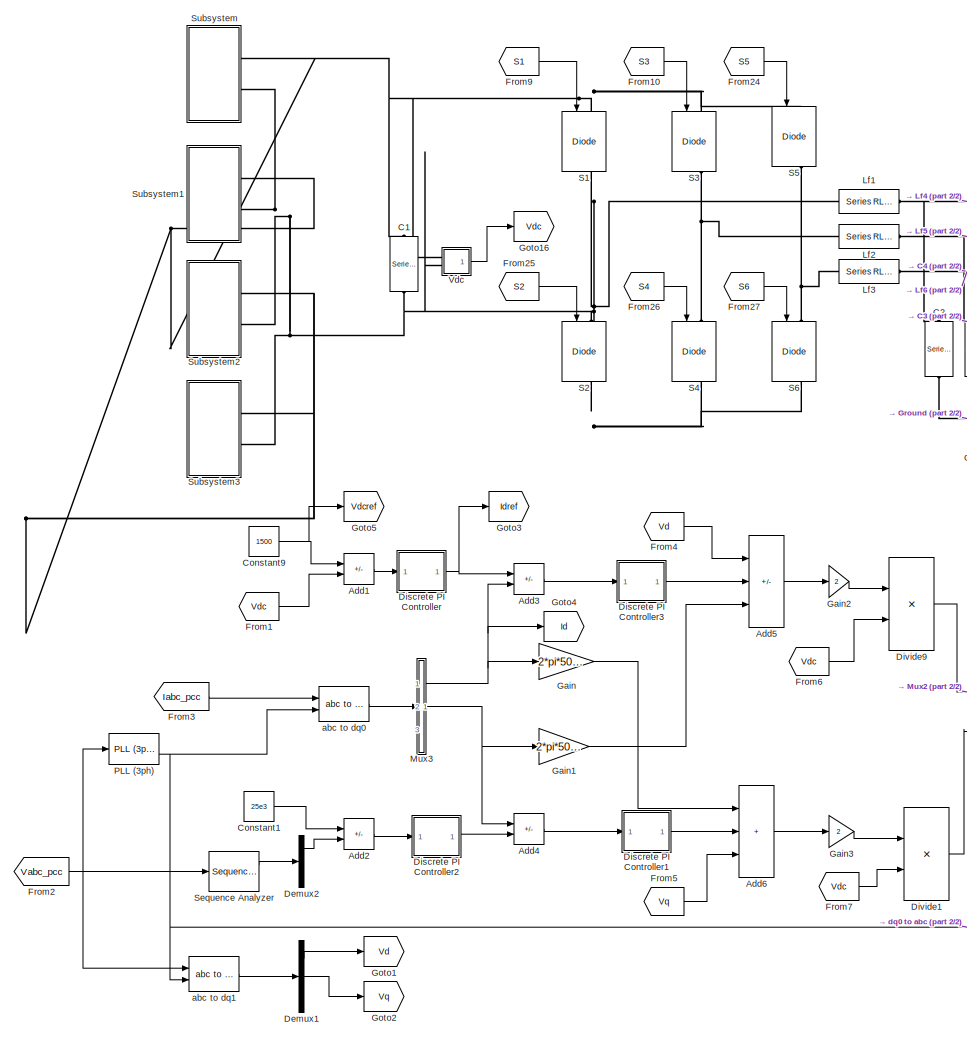
[diagram: root canvas - part 1/2, left side, full height]
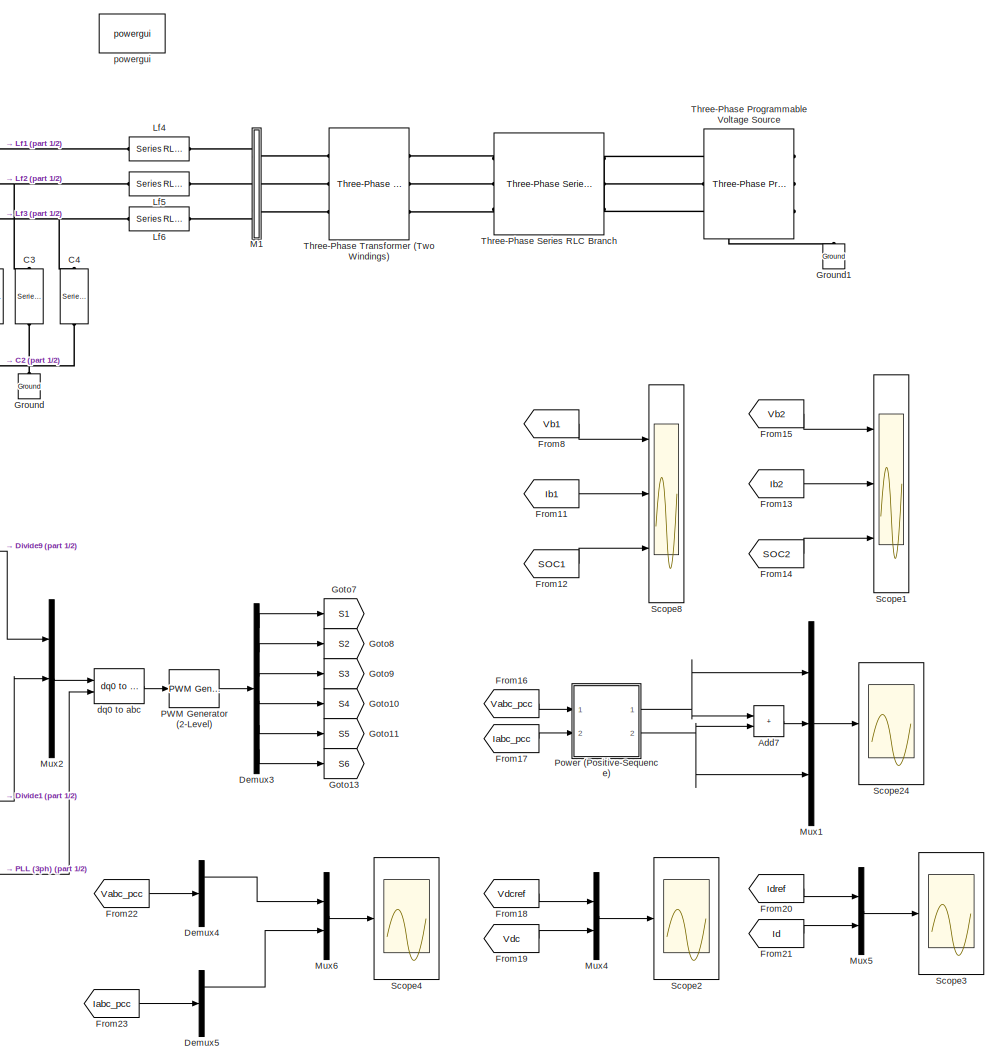
[diagram: root canvas - part 2/2, right side, full height]
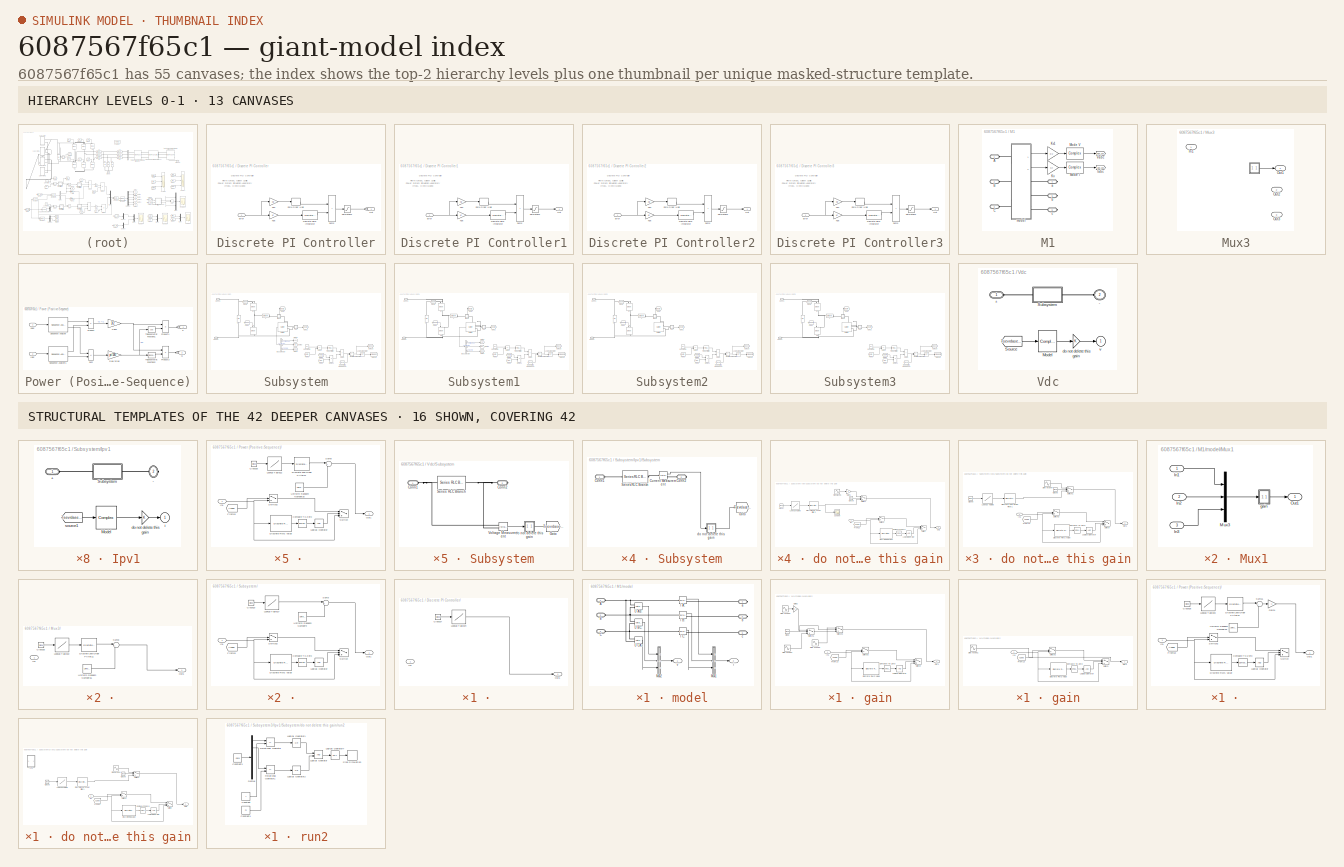
[diagram: thumbnail index - top-2 hierarchy levels (13 canvases) + 16 structural-template representatives of the remaining 42 canvases]
MODEL slx_6087567f65c1
KIND model
CONFIG AbsTol = auto
CONFIG EnableMultiTasking = on
CONFIG FixedStep = auto
CONFIG InitFcn = Ts=50e-6;\nTss=50e-6;\nwarning off;
CONFIG MaxStep = auto
CONFIG MinStep = auto
CONFIG PreLoadFcn = Ts=50e-6;\nTss=50e-6;\nwarning off;
CONFIG RelTol = 1e-3
CONFIG SampleTimeConstraint = Unconstrained
CONFIG SolverName = VariableStepAuto
CONFIG StartTime = 0.0
CONFIG StopTime = 6
BLOCK [Sum] Add1
  IconShape = rectangular
  Inputs = +-
  Ports = [2, 1]
BLOCK [Sum] Add2
  IconShape = rectangular
  Inputs = +-
  Ports = [2, 1]
BLOCK [Sum] Add3
  IconShape = rectangular
  Inputs = +-
  Ports = [2, 1]
BLOCK [Sum] Add4
  IconShape = rectangular
  Inputs = -+
  Ports = [2, 1]
BLOCK [Sum] Add5
  IconShape = rectangular
  Inputs = ++-
  Ports = [3, 1]
BLOCK [Sum] Add6
  IconShape = rectangular
  Inputs = +++
  Ports = [3, 1]
BLOCK [Sum] Add7
  IconShape = rectangular
  Ports = [2, 1]
BLOCK [Reference] C1  REF=spsSeriesRLCBranchLib/Series RLC Branch
  NameLocation = left
  Ports = [0, 0, 0, 0, 0, 1, 1]
  SourceBlock = spsSeriesRLCBranchLib/Series RLC Branch
  SourceProductBaseCode = PS
  SourceType = Series RLC Branch
BLOCK [Reference] C2  REF=spsSeriesRLCBranchLib/Series RLC Branch
  NameLocation = left
  Ports = [0, 0, 0, 0, 0, 1, 1]
  SourceBlock = spsSeriesRLCBranchLib/Series RLC Branch
  SourceProductBaseCode = PS
  SourceType = Series RLC Branch
BLOCK [Reference] C3  REF=spsSeriesRLCBranchLib/Series RLC Branch
  NameLocation = left
  Ports = [0, 0, 0, 0, 0, 1, 1]
  SourceBlock = spsSeriesRLCBranchLib/Series RLC Branch
  SourceProductBaseCode = PS
  SourceType = Series RLC Branch
BLOCK [Reference] C4  REF=spsSeriesRLCBranchLib/Series RLC Branch
  NameLocation = left
  Ports = [0, 0, 0, 0, 0, 1, 1]
  SourceBlock = spsSeriesRLCBranchLib/Series RLC Branch
  SourceProductBaseCode = PS
  SourceType = Series RLC Branch
BLOCK [Constant] Constant1
  Value = 25e3
BLOCK [Constant] Constant9
  Value = 1500
BLOCK [Demux] Demux1
  Outputs = 3
  Ports = [1, 3]
BLOCK [Demux] Demux2
  Outputs = 3
  Ports = [1, 3]
BLOCK [Demux] Demux3
  Outputs = 6
  Ports = [1, 6]
BLOCK [Demux] Demux4
  Outputs = 3
  Ports = [1, 3]
BLOCK [Demux] Demux5
  Outputs = 3
  Ports = [1, 3]
BLOCK [SubSystem] Discrete PI Controller
  DialogController = POWERSYS.PowerSysDialog
  Ports = [1, 1]
  RequestExecContextInheritance = off
BLOCK [SubSystem] Discrete PI Controller/ 
  Permissions = NoReadOrWrite
  Ports = [1, 1]
  RequestExecContextInheritance = off
BLOCK [Clock] Discrete PI Controller/ /Clock27
BLOCK [Inport] Discrete PI Controller/ /In1
BLOCK [Lookup] Discrete PI Controller/ /Lookup Table24
  InputValues = [0 1 1 1.005 1.01 4 4.005 4.01 6]
  SaturateOnIntegerOverflow = off
  Table = [-0.4 -0.4 -0.18 -0.22 -0.22 -0.22 -0.55 -0.5 -0.5]
BLOCK [Outport] Discrete PI Controller/ /Out1
BLOCK [DiscreteIntegrator] Discrete PI Controller/Discrete-Time Integrator
  ICPrevOutput = DiscIntNeverNeededParam
  ICPrevScaledInput = DiscIntNeverNeededParam
  InitialCondition = Init
  LimitOutput = on
  LowerSaturationLimit = LowerLimit
  Ports = [1, 1]
  SampleTime = Ts
  UpperSaturationLimit = UpperLimit
BLOCK [Inport] Discrete PI Controller/Error
  SampleTime = Ts
BLOCK [Gain] Discrete PI Controller/Kp4
  Gain = Kp
  OutDataTypeStr = Inherit: Same as input
  ParamDataTypeStr = Inherit: Same as input
  SampleTime = Ts
  SaturateOnIntegerOverflow = on
BLOCK [Gain] Discrete PI Controller/Kp5
  Gain = Ki
  OutDataTypeStr = Inherit: Same as input
  ParamDataTypeStr = Inherit: Same as input
  SampleTime = Ts
  SaturateOnIntegerOverflow = on
BLOCK [Outport] Discrete PI Controller/Out
  InitialOutput = 0
  SampleTime = Ts
BLOCK [Saturate] Discrete PI Controller/Saturation2
  LowerLimit = LowerLimit
  NameLocation = top
  SampleTime = Ts
  UpperLimit = UpperLimit
BLOCK [Sum] Discrete PI Controller/Sum6
  IconShape = rectangular
  InputSameDT = on
  OutDataTypeStr = Inherit: Same as first input
  Ports = [2, 1]
  SampleTime = Ts
  SaturateOnIntegerOverflow = on
BLOCK [ZeroOrderHold] Discrete PI Controller/Zero-Order Hold
  SampleTime = Ts
BLOCK [SubSystem] Discrete PI Controller1
  DialogController = POWERSYS.PowerSysDialog
  Ports = [1, 1]
  RequestExecContextInheritance = off
BLOCK [DiscreteIntegrator] Discrete PI Controller1/Discrete-Time Integrator
  ICPrevOutput = DiscIntNeverNeededParam
  ICPrevScaledInput = DiscIntNeverNeededParam
  InitialCondition = Init
  LimitOutput = on
  LowerSaturationLimit = LowerLimit
  Ports = [1, 1]
  SampleTime = Ts
  UpperSaturationLimit = UpperLimit
BLOCK [Inport] Discrete PI Controller1/Error
  SampleTime = Ts
BLOCK [Gain] Discrete PI Controller1/Kp4
  Gain = Kp
  OutDataTypeStr = Inherit: Same as input
  ParamDataTypeStr = Inherit: Same as input
  SampleTime = Ts
  SaturateOnIntegerOverflow = on
BLOCK [Gain] Discrete PI Controller1/Kp5
  Gain = Ki
  OutDataTypeStr = Inherit: Same as input
  ParamDataTypeStr = Inherit: Same as input
  SampleTime = Ts
  SaturateOnIntegerOverflow = on
BLOCK [Outport] Discrete PI Controller1/Out
  InitialOutput = 0
  SampleTime = Ts
BLOCK [Saturate] Discrete PI Controller1/Saturation2
  LowerLimit = LowerLimit
  NameLocation = top
  SampleTime = Ts
  UpperLimit = UpperLimit
BLOCK [Sum] Discrete PI Controller1/Sum6
  IconShape = rectangular
  InputSameDT = on
  OutDataTypeStr = Inherit: Same as first input
  Ports = [2, 1]
  SampleTime = Ts
  SaturateOnIntegerOverflow = on
BLOCK [ZeroOrderHold] Discrete PI Controller1/Zero-Order Hold
  SampleTime = Ts
BLOCK [SubSystem] Discrete PI Controller2
  DialogController = POWERSYS.PowerSysDialog
  Ports = [1, 1]
  RequestExecContextInheritance = off
BLOCK [DiscreteIntegrator] Discrete PI Controller2/Discrete-Time Integrator
  ICPrevOutput = DiscIntNeverNeededParam
  ICPrevScaledInput = DiscIntNeverNeededParam
  InitialCondition = Init
  LimitOutput = on
  LowerSaturationLimit = LowerLimit
  Ports = [1, 1]
  SampleTime = Ts
  UpperSaturationLimit = UpperLimit
BLOCK [Inport] Discrete PI Controller2/Error
  SampleTime = Ts
BLOCK [Gain] Discrete PI Controller2/Kp4
  Gain = Kp
  OutDataTypeStr = Inherit: Same as input
  ParamDataTypeStr = Inherit: Same as input
  SampleTime = Ts
  SaturateOnIntegerOverflow = on
BLOCK [Gain] Discrete PI Controller2/Kp5
  Gain = Ki
  OutDataTypeStr = Inherit: Same as input
  ParamDataTypeStr = Inherit: Same as input
  SampleTime = Ts
  SaturateOnIntegerOverflow = on
BLOCK [Outport] Discrete PI Controller2/Out
  InitialOutput = 0
  SampleTime = Ts
BLOCK [Saturate] Discrete PI Controller2/Saturation2
  LowerLimit = LowerLimit
  NameLocation = top
  SampleTime = Ts
  UpperLimit = UpperLimit
BLOCK [Sum] Discrete PI Controller2/Sum6
  IconShape = rectangular
  InputSameDT = on
  OutDataTypeStr = Inherit: Same as first input
  Ports = [2, 1]
  SampleTime = Ts
  SaturateOnIntegerOverflow = on
BLOCK [ZeroOrderHold] Discrete PI Controller2/Zero-Order Hold
  SampleTime = Ts
BLOCK [SubSystem] Discrete PI Controller3
  DialogController = POWERSYS.PowerSysDialog
  Ports = [1, 1]
  RequestExecContextInheritance = off
BLOCK [DiscreteIntegrator] Discrete PI Controller3/Discrete-Time Integrator
  ICPrevOutput = DiscIntNeverNeededParam
  ICPrevScaledInput = DiscIntNeverNeededParam
  InitialCondition = Init
  LimitOutput = on
  LowerSaturationLimit = LowerLimit
  Ports = [1, 1]
  SampleTime = Ts
  UpperSaturationLimit = UpperLimit
BLOCK [Inport] Discrete PI Controller3/Error
  SampleTime = Ts
BLOCK [Gain] Discrete PI Controller3/Kp4
  Gain = Kp
  OutDataTypeStr = Inherit: Same as input
  ParamDataTypeStr = Inherit: Same as input
  SampleTime = Ts
  SaturateOnIntegerOverflow = on
BLOCK [Gain] Discrete PI Controller3/Kp5
  Gain = Ki
  OutDataTypeStr = Inherit: Same as input
  ParamDataTypeStr = Inherit: Same as input
  SampleTime = Ts
  SaturateOnIntegerOverflow = on
BLOCK [Outport] Discrete PI Controller3/Out
  InitialOutput = 0
  SampleTime = Ts
BLOCK [Saturate] Discrete PI Controller3/Saturation2
  LowerLimit = LowerLimit
  NameLocation = top
  SampleTime = Ts
  UpperLimit = UpperLimit
BLOCK [Sum] Discrete PI Controller3/Sum6
  IconShape = rectangular
  InputSameDT = on
  OutDataTypeStr = Inherit: Same as first input
  Ports = [2, 1]
  SampleTime = Ts
  SaturateOnIntegerOverflow = on
BLOCK [ZeroOrderHold] Discrete PI Controller3/Zero-Order Hold
  SampleTime = Ts
BLOCK [Product] Divide1
  Inputs = */
  Ports = [2, 1]
BLOCK [Product] Divide9
  Inputs = */
  Ports = [2, 1]
BLOCK [From] From1
  GotoTag = Vdc
  TagVisibility = global
BLOCK [From] From10
  GotoTag = S3
  TagVisibility = global
BLOCK [From] From11
  GotoTag = Ib1
  TagVisibility = global
BLOCK [From] From12
  GotoTag = SOC1
  TagVisibility = global
BLOCK [From] From13
  GotoTag = Ib2
  TagVisibility = global
BLOCK [From] From14
  GotoTag = SOC2
  TagVisibility = global
BLOCK [From] From15
  GotoTag = Vb2
  TagVisibility = global
BLOCK [From] From16
  GotoTag = Vabc_pcc
  TagVisibility = global
BLOCK [From] From17
  GotoTag = Iabc_pcc
  TagVisibility = global
BLOCK [From] From18
  GotoTag = Vdcref
  TagVisibility = global
BLOCK [From] From19
  GotoTag = Vdc
  TagVisibility = global
BLOCK [From] From2
  GotoTag = Vabc_pcc
  TagVisibility = global
BLOCK [From] From20
  GotoTag = Idref
  TagVisibility = global
BLOCK [From] From21
  GotoTag = Id
  TagVisibility = global
BLOCK [From] From22
  GotoTag = Vabc_pcc
  TagVisibility = global
BLOCK [From] From23
  GotoTag = Iabc_pcc
  TagVisibility = global
BLOCK [From] From24
  GotoTag = S5
  TagVisibility = global
BLOCK [From] From25
  GotoTag = S2
  TagVisibility = global
BLOCK [From] From26
  GotoTag = S4
  TagVisibility = global
BLOCK [From] From27
  GotoTag = S6
  TagVisibility = global
BLOCK [From] From3
  GotoTag = Iabc_pcc
  TagVisibility = global
BLOCK [From] From4
  GotoTag = Vd
  TagVisibility = global
BLOCK [From] From5
  GotoTag = Vq
  TagVisibility = global
BLOCK [From] From6
  GotoTag = Vdc
  TagVisibility = global
BLOCK [From] From7
  GotoTag = Vdc
  TagVisibility = global
BLOCK [From] From8
  GotoTag = Vb1
  TagVisibility = global
BLOCK [From] From9
  GotoTag = S1
  TagVisibility = global
BLOCK [Gain] Gain
  Gain = 2*pi*50*0.25e-3
BLOCK [Gain] Gain1
  Gain = 2*pi*50*0.25e-3
BLOCK [Gain] Gain2
  Gain = 2
BLOCK [Gain] Gain3
  Gain = 2
BLOCK [Goto] Goto1
  GotoTag = Vd
  TagVisibility = global
BLOCK [Goto] Goto10
  GotoTag = S4
  TagVisibility = global
BLOCK [Goto] Goto11
  GotoTag = S5
  TagVisibility = global
BLOCK [Goto] Goto13
  GotoTag = S6
  TagVisibility = global
BLOCK [Goto] Goto16
  GotoTag = Vdc
  TagVisibility = global
BLOCK [Goto] Goto2
  GotoTag = Vq
  TagVisibility = global
BLOCK [Goto] Goto3
  GotoTag = Idref
  TagVisibility = global
BLOCK [Goto] Goto4
  GotoTag = Id
  TagVisibility = global
BLOCK [Goto] Goto5
  GotoTag = Vdcref
  TagVisibility = global
BLOCK [Goto] Goto7
  GotoTag = S1
  TagVisibility = global
BLOCK [Goto] Goto8
  GotoTag = S2
  TagVisibility = global
BLOCK [Goto] Goto9
  GotoTag = S3
  TagVisibility = global
BLOCK [Reference] Ground  REF=spsGroundLib/Ground
  NameLocation = right
  Ports = [0, 0, 0, 0, 0, 1]
  SourceBlock = spsGroundLib/Ground
  SourceProductBaseCode = PS
  SourceType = Ground
BLOCK [Reference] Ground1  REF=spsGroundLib/Ground
  NameLocation = right
  Ports = [0, 0, 0, 0, 0, 1]
  SourceBlock = spsGroundLib/Ground
  SourceProductBaseCode = PS
  SourceType = Ground
BLOCK [Reference] Lf1  REF=spsSeriesRLCBranchLib/Series RLC Branch
  Ports = [0, 0, 0, 0, 0, 1, 1]
  SourceBlock = spsSeriesRLCBranchLib/Series RLC Branch
  SourceProductBaseCode = PS
  SourceType = Series RLC Branch
BLOCK [Reference] Lf2  REF=spsSeriesRLCBranchLib/Series RLC Branch
  Ports = [0, 0, 0, 0, 0, 1, 1]
  SourceBlock = spsSeriesRLCBranchLib/Series RLC Branch
  SourceProductBaseCode = PS
  SourceType = Series RLC Branch
BLOCK [Reference] Lf3  REF=spsSeriesRLCBranchLib/Series RLC Branch
  Ports = [0, 0, 0, 0, 0, 1, 1]
  SourceBlock = spsSeriesRLCBranchLib/Series RLC Branch
  SourceProductBaseCode = PS
  SourceType = Series RLC Branch
BLOCK [Reference] Lf4  REF=spsSeriesRLCBranchLib/Series RLC Branch
  Ports = [0, 0, 0, 0, 0, 1, 1]
  SourceBlock = spsSeriesRLCBranchLib/Series RLC Branch
  SourceProductBaseCode = PS
  SourceType = Series RLC Branch
BLOCK [Reference] Lf5  REF=spsSeriesRLCBranchLib/Series RLC Branch
  Ports = [0, 0, 0, 0, 0, 1, 1]
  SourceBlock = spsSeriesRLCBranchLib/Series RLC Branch
  SourceProductBaseCode = PS
  SourceType = Series RLC Branch
BLOCK [Reference] Lf6  REF=spsSeriesRLCBranchLib/Series RLC Branch
  Ports = [0, 0, 0, 0, 0, 1, 1]
  SourceBlock = spsSeriesRLCBranchLib/Series RLC Branch
  SourceProductBaseCode = PS
  SourceType = Series RLC Branch
BLOCK [SubSystem] M1
  CloseFcn = sps_rtmsupport('CloseFcn',gcbh);
  CopyFcn = sps_rtmsupport('CopyFcn',gcbh); powericon('ThreePhaseVIMeasurementCopy',gcb)
  DeleteFcn = sps_rtmsupport('DeleteFcn',gcbh);
  DialogController = POWERSYS.PowerSysDialog
  LoadFcn = if ~strcmp(get_param(bdroot,'BlockDiagramType'),'library')\n    set_param([gcb,'/Model'],'LinkStatus','restore');\nend\nsps_rtmsupport('LoadFcn',gcbh);
  ModelCloseFcn = sps_rtmsupport('ModelCloseFcn',gcbh);
  NameChangeFcn = sps_rtmsupport('NameChangeFcn',gcbh);
  OpenFcn = sps_rtmsupport('OpenFcn',gcbh, [1 2 4 5 6 7 9 -12 13]);
  Ports = [0, 0, 0, 0, 0, 3, 3]
  PostSaveFcn = sps_rtmsupport('PostSaveFcn',gcbh);
  PreCopyFcn = sps_rtmsupport('PreCopyFcn',gcbh);
  PreDeleteFcn = sps_rtmsupport('PreDeleteFcn',gcbh);
  PreSaveFcn = sps_rtmsupport('PreSaveFcn',gcbh);  set_param(gcb,'LinkStatus','restore')
  RequestExecContextInheritance = off
  StartFcn = sps_rtmsupport('StartFcn',gcbh);
  StopFcn = sps_rtmsupport('StopFcn',gcbh);
  UndoDeleteFcn = sps_rtmsupport('UndoDeleteFcn',gcbh);
BLOCK [PMIOPort] M1/A
  NameLocation = top
  Side = Left
BLOCK [PMIOPort] M1/B
  Port = 2
  Side = Left
BLOCK [PMIOPort] M1/C
  Port = 3
  Side = Left
BLOCK [Goto] M1/Iabc
  GotoTag = Iabc_pcc
  TagVisibility = global
BLOCK [Gain] M1/Kv
  Gain = Ki
  OutDataTypeStr = Inherit: Same as input
  ParamDataTypeStr = Inherit: Same as input
  SaturateOnIntegerOverflow = on
BLOCK [Gain] M1/Kv1
  Gain = Kv
  OutDataTypeStr = Inherit: Same as input
  ParamDataTypeStr = Inherit: Same as input
  SaturateOnIntegerOverflow = on
BLOCK [Reference] M1/Mode I  REF=spsVIMeasurementModel/Complex
  Ports = [1, 1]
  SourceBlock = spsVIMeasurementModel/Complex
  SourceProductBaseCode = PS
  SourceType = SubSystem
BLOCK [Reference] M1/Mode V  REF=spsVIMeasurementModel/Complex
  NameLocation = top
  Ports = [1, 1]
  SourceBlock = spsVIMeasurementModel/Complex
  SourceProductBaseCode = PS
  SourceType = SubSystem
BLOCK [Goto] M1/Vabc
  GotoTag = Vabc_pcc
  TagVisibility = global
BLOCK [PMIOPort] M1/a
  NameLocation = top
  Port = 4
  Side = Right
BLOCK [PMIOPort] M1/b
  Port = 5
  Side = Right
BLOCK [PMIOPort] M1/c
  Port = 6
  Side = Right
BLOCK [SubSystem] M1/model
  Ports = [0, 2, 0, 0, 0, 3, 3]
  RequestExecContextInheritance = off
BLOCK [PMIOPort] M1/model/A
  Side = Left
BLOCK [PMIOPort] M1/model/B
  Port = 2
  Side = Left
BLOCK [PMIOPort] M1/model/C
  Port = 3
  Side = Left
BLOCK [Reference] M1/model/I A:  REF=spsCurrentMeasurementLib/Current Measurement
  Ports = [0, 1, 0, 0, 0, 1, 1]
  SourceBlock = spsCurrentMeasurementLib/Current Measurement
  SourceProductBaseCode = PS
  SourceType = Current Measurement
BLOCK [Reference] M1/model/I B:  REF=spsCurrentMeasurementLib/Current Measurement
  Ports = [0, 1, 0, 0, 0, 1, 1]
  SourceBlock = spsCurrentMeasurementLib/Current Measurement
  SourceProductBaseCode = PS
  SourceType = Current Measurement
BLOCK [Reference] M1/model/I C:  REF=spsCurrentMeasurementLib/Current Measurement
  Ports = [0, 1, 0, 0, 0, 1, 1]
  SourceBlock = spsCurrentMeasurementLib/Current Measurement
  SourceProductBaseCode = PS
  SourceType = Current Measurement
BLOCK [SubSystem] M1/model/Mux1
  Permissions = NoReadOrWrite
  Ports = [3, 1]
  RequestExecContextInheritance = off
BLOCK [Inport] M1/model/Mux1/In1
BLOCK [Inport] M1/model/Mux1/In2
  Port = 2
BLOCK [Inport] M1/model/Mux1/In3
  Port = 3
BLOCK [Mux] M1/model/Mux1/Mux3
  DisplayOption = bar
  Inputs = 3
  Ports = [3, 1]
BLOCK [Outport] M1/model/Mux1/Out1
BLOCK [SubSystem] M1/model/Mux1/gain
  Ports = [1, 1]
  RequestExecContextInheritance = off
BLOCK [Clock] M1/model/Mux1/gain/Clock
BLOCK [Reference] M1/model/Mux1/gain/Compare To Zero  REF=simulink/Logic and Bit
Operations/Compare
To Zero
  Ports = [1, 1]
  SourceBlock = simulink/Logic and Bit\nOperations/Compare\nTo Zero
  SourceProductBaseCode = SL
  SourceType = Compare To Zero
BLOCK [Reference] M1/model/Mux1/gain/Discrete RMS value  REF=powerlib_extras/Discrete
Measurements/Discrete 
RMS value
  Ports = [1, 1]
  SourceBlock = powerlib_extras/Discrete\nMeasurements/Discrete \nRMS value
  SourceProductBaseCode = PS
  SourceType = Discrete RMS value
BLOCK [From] M1/model/Mux1/gain/From13
  GotoTag = A2365
BLOCK [Gain] M1/model/Mux1/gain/Gain2
  Gain = -1
BLOCK [Inport] M1/model/Mux1/gain/In1
BLOCK [Logic] M1/model/Mux1/gain/Logical Operator
  AllPortsSameDT = off
  Inputs = 1
  OutDataTypeStr = boolean
  Ports = [1, 1]
BLOCK [Outport] M1/model/Mux1/gain/Out1
BLOCK [Sin] M1/model/Mux1/gain/Sine Wave1
  Amplitude = 0.1
  Frequency = 2*pi*50
  Phase = [0 2*pi/3 -2*pi/3]
  Ports = [0, 1]
  SampleTime = 0
BLOCK [Sin] M1/model/Mux1/gain/Sine Wave2
  Amplitude = 0.4
  Frequency = 2*pi*50
  Phase = [0 2*pi/3 -2*pi/3]
  Ports = [0, 1]
  SampleTime = 0
BLOCK [Sin] M1/model/Mux1/gain/Sine Wave3
  Amplitude = 0.2
  Frequency = 2*pi*50
  Phase = [0 2*pi/3 -2*pi/3]
  Ports = [0, 1]
  SampleTime = 0
BLOCK [Switch] M1/model/Mux1/gain/Switch
  InputSameDT = off
  SaturateOnIntegerOverflow = off
  Threshold = 0.5
BLOCK [Switch] M1/model/Mux1/gain/Switch1
  InputSameDT = off
  SaturateOnIntegerOverflow = off
  Threshold = 1
BLOCK [Switch] M1/model/Mux1/gain/Switch2
  InputSameDT = off
  SaturateOnIntegerOverflow = off
  Threshold = 0.5
BLOCK [Switch] M1/model/Mux1/gain/Switch3
  InputSameDT = off
  SaturateOnIntegerOverflow = off
  Threshold = 4
BLOCK [SubSystem] M1/model/Mux2
  Permissions = NoReadOrWrite
  Ports = [3, 1]
  RequestExecContextInheritance = off
BLOCK [Inport] M1/model/Mux2/In1
BLOCK [Inport] M1/model/Mux2/In2
  Port = 2
BLOCK [Inport] M1/model/Mux2/In3
  Port = 3
BLOCK [Mux] M1/model/Mux2/Mux3
  DisplayOption = bar
  Inputs = 3
  Ports = [3, 1]
BLOCK [Outport] M1/model/Mux2/Out1
BLOCK [SubSystem] M1/model/Mux2/gain
  Ports = [1, 1]
  RequestExecContextInheritance = off
BLOCK [Reference] M1/model/Mux2/gain/Compare To Zero  REF=simulink/Logic and Bit
Operations/Compare
To Zero
  Ports = [1, 1]
  SourceBlock = simulink/Logic and Bit\nOperations/Compare\nTo Zero
  SourceProductBaseCode = SL
  SourceType = Compare To Zero
BLOCK [Reference] M1/model/Mux2/gain/Discrete RMS value  REF=powerlib_extras/Discrete
Measurements/Discrete 
RMS value
  Ports = [1, 1]
  SourceBlock = powerlib_extras/Discrete\nMeasurements/Discrete \nRMS value
  SourceProductBaseCode = PS
  SourceType = Discrete RMS value
BLOCK [From] M1/model/Mux2/gain/From13
  GotoTag = A2365
BLOCK [Inport] M1/model/Mux2/gain/In1
BLOCK [Logic] M1/model/Mux2/gain/Logical Operator
  AllPortsSameDT = off
  Inputs = 1
  OutDataTypeStr = boolean
  Ports = [1, 1]
BLOCK [Outport] M1/model/Mux2/gain/Out1
BLOCK [Sin] M1/model/Mux2/gain/Sine Wave1
  Frequency = 2*pi*50
  Phase = [0 2*pi/3 -2*pi/3]
  Ports = [0, 1]
  SampleTime = 0
BLOCK [Switch] M1/model/Mux2/gain/Switch
  InputSameDT = off
  SaturateOnIntegerOverflow = off
  Threshold = 0.5
BLOCK [Switch] M1/model/Mux2/gain/Switch2
  InputSameDT = off
  SaturateOnIntegerOverflow = off
  Threshold = 0.5
BLOCK [Reference] M1/model/U AB:  REF=spsVoltageMeasurementLib/Voltage Measurement
  Ports = [0, 1, 0, 0, 0, 2]
  SourceBlock = spsVoltageMeasurementLib/Voltage Measurement
  SourceProductBaseCode = PS
  SourceType = Voltage Measurement
BLOCK [Reference] M1/model/U BC:  REF=spsVoltageMeasurementLib/Voltage Measurement
  Ports = [0, 1, 0, 0, 0, 2]
  SourceBlock = spsVoltageMeasurementLib/Voltage Measurement
  SourceProductBaseCode = PS
  SourceType = Voltage Measurement
BLOCK [Reference] M1/model/U CA:  REF=spsVoltageMeasurementLib/Voltage Measurement
  Ports = [0, 1, 0, 0, 0, 2]
  SourceBlock = spsVoltageMeasurementLib/Voltage Measurement
  SourceProductBaseCode = PS
  SourceType = Voltage Measurement
BLOCK [PMIOPort] M1/model/a
  Port = 4
  Side = Right
BLOCK [PMIOPort] M1/model/b
  Port = 5
  Side = Right
BLOCK [PMIOPort] M1/model/c
  Port = 6
  Side = Right
BLOCK [Outport] M1/model/i
  Port = 2
BLOCK [Outport] M1/model/v
BLOCK [Mux] Mux1
  DisplayOption = bar
  Inputs = 3
  Ports = [3, 1]
BLOCK [Mux] Mux2
  DisplayOption = bar
  Inputs = 3
  Ports = [3, 1]
BLOCK [SubSystem] Mux3
  Permissions = NoReadOrWrite
  Ports = [1, 3]
  RequestExecContextInheritance = off
BLOCK [SubSystem] Mux3/ 
  Permissions = NoReadOrWrite
  Ports = [1, 1]
  RequestExecContextInheritance = off
BLOCK [Clock] Mux3/ /Clock25
BLOCK [Reference] Mux3/ /Discrete 2nd-Order Filter11  REF=powerlib_extras/Discrete 
Control Blocks/Discrete 
2nd-Order
Filter
  Ports = [1, 1]
  SourceBlock = powerlib_extras/Discrete \nControl Blocks/Discrete \n2nd-Order\nFilter
  SourceProductBaseCode = PS
  SourceType = Discrete 2nd-Order Filter
BLOCK [Inport] Mux3/ /In1
BLOCK [Lookup] Mux3/ /Lookup Table22
  InputValues = [0 1 1 1.005 1.01 4 4.005 4.01 6]
  SaturateOnIntegerOverflow = off
  Table = [-0.4 -0.4 -0.18 -0.22 -0.22 -0.22 -0.55 -0.5 -0.5]
BLOCK [Outport] Mux3/ /Out1
BLOCK [Sum] Mux3/ /Sum8
  Inputs = |++
  Ports = [2, 1]
BLOCK [UniformRandomNumber] Mux3/ /Uniform Random Number15
  Maximum = 0.0001
  Minimum = -0.0001
  SampleTime = 50e-6
BLOCK [Inport] Mux3/In1
BLOCK [Outport] Mux3/Out1
BLOCK [Outport] Mux3/Out2
  Port = 2
BLOCK [Outport] Mux3/Out3
  Port = 3
BLOCK [Mux] Mux4
  DisplayOption = bar
  Inputs = 2
  Ports = [2, 1]
BLOCK [Mux] Mux5
  DisplayOption = bar
  Inputs = 2
  Ports = [2, 1]
BLOCK [Mux] Mux6
  DisplayOption = bar
  Inputs = 2
  Ports = [2, 1]
BLOCK [Reference] PLL (3ph)  REF=spsPLL3phLib/PLL
(3ph)
  Ports = [1, 2]
  SourceBlock = spsPLL3phLib/PLL\n(3ph)
  SourceProductBaseCode = PS
  SourceType = PLL (3ph)
BLOCK [Reference] PWM Generator (2-Level)  REF=spsPWMGenerator2LevelLib/PWM Generator
(2-Level)
  Ports = [1, 1]
  SourceBlock = spsPWMGenerator2LevelLib/PWM Generator\n(2-Level)
  SourceProductBaseCode = PS
  SourceType = PWM Generator (2-Level)
BLOCK [SubSystem] Power (Positive-Sequence)
  DialogController = POWERSYS.PowerSysDialog
  Ports = [2, 2]
  RequestExecContextInheritance = off
BLOCK [SubSystem] Power (Positive-Sequence)/ 
  Permissions = NoReadOrWrite
  Ports = [1, 1]
  RequestExecContextInheritance = off
BLOCK [SubSystem] Power (Positive-Sequence)/  
  Permissions = NoReadOrWrite
  Ports = [1, 1]
  RequestExecContextInheritance = off
BLOCK [Clock] Power (Positive-Sequence)/  /Clock26
BLOCK [Reference] Power (Positive-Sequence)/  /Compare To Zero  REF=simulink/Logic and Bit
Operations/Compare
To Zero
  Ports = [1, 1]
  SourceBlock = simulink/Logic and Bit\nOperations/Compare\nTo Zero
  SourceProductBaseCode = SL
  SourceType = Compare To Zero
BLOCK [Reference] Power (Positive-Sequence)/  /Discrete 2nd-Order Filter12  REF=powerlib_extras/Discrete 
Control Blocks/Discrete 
2nd-Order
Filter
  Ports = [1, 1]
  SourceBlock = powerlib_extras/Discrete \nControl Blocks/Discrete \n2nd-Order\nFilter
  SourceProductBaseCode = PS
  SourceType = Discrete 2nd-Order Filter
BLOCK [Reference] Power (Positive-Sequence)/  /Discrete RMS value  REF=powerlib_extras/Discrete
Measurements/Discrete 
RMS value
  Ports = [1, 1]
  SourceBlock = powerlib_extras/Discrete\nMeasurements/Discrete \nRMS value
  SourceProductBaseCode = PS
  SourceType = Discrete RMS value
BLOCK [From] Power (Positive-Sequence)/  /From13
  GotoTag = A2365
BLOCK [Gain] Power (Positive-Sequence)/  /Gain4
  Gain = -1
BLOCK [Inport] Power (Positive-Sequence)/  /In1
BLOCK [Logic] Power (Positive-Sequence)/  /Logical Operator
  AllPortsSameDT = off
  Inputs = 1
  OutDataTypeStr = boolean
  Ports = [1, 1]
BLOCK [Lookup] Power (Positive-Sequence)/  /Lookup Table23
  InputValues = [0 1 1 1.01 4 4.005 4.01 6]
  SaturateOnIntegerOverflow = off
  Table = [0 0 50 42 42 -40 -32 -32]
BLOCK [Outport] Power (Positive-Sequence)/  /Out1
BLOCK [Sum] Power (Positive-Sequence)/  /Sum11
  Inputs = |++
  Ports = [2, 1]
BLOCK [Switch] Power (Positive-Sequence)/  /Switch
  InputSameDT = off
  SaturateOnIntegerOverflow = off
  Threshold = 0.5
BLOCK [Switch] Power (Positive-Sequence)/  /Switch2
  InputSameDT = off
  SaturateOnIntegerOverflow = off
  Threshold = 0.5
BLOCK [UniformRandomNumber] Power (Positive-Sequence)/  /Uniform Random Number16
  Maximum = 0.1
  Minimum = -0.1
  SampleTime = 50e-6
BLOCK [Clock] Power (Positive-Sequence)/ /Clock25
BLOCK [Reference] Power (Positive-Sequence)/ /Compare To Zero  REF=simulink/Logic and Bit
Operations/Compare
To Zero
  Ports = [1, 1]
  SourceBlock = simulink/Logic and Bit\nOperations/Compare\nTo Zero
  SourceProductBaseCode = SL
  SourceType = Compare To Zero
BLOCK [Reference] Power (Positive-Sequence)/ /Discrete 2nd-Order Filter11  REF=powerlib_extras/Discrete 
Control Blocks/Discrete 
2nd-Order
Filter
  Ports = [1, 1]
  SourceBlock = powerlib_extras/Discrete \nControl Blocks/Discrete \n2nd-Order\nFilter
  SourceProductBaseCode = PS
  SourceType = Discrete 2nd-Order Filter
BLOCK [Reference] Power (Positive-Sequence)/ /Discrete RMS value  REF=powerlib_extras/Discrete
Measurements/Discrete 
RMS value
  Ports = [1, 1]
  SourceBlock = powerlib_extras/Discrete\nMeasurements/Discrete \nRMS value
  SourceProductBaseCode = PS
  SourceType = Discrete RMS value
BLOCK [From] Power (Positive-Sequence)/ /From13
  GotoTag = A2365
BLOCK [Inport] Power (Positive-Sequence)/ /In1
BLOCK [Logic] Power (Positive-Sequence)/ /Logical Operator
  AllPortsSameDT = off
  Inputs = 1
  OutDataTypeStr = boolean
  Ports = [1, 1]
BLOCK [Lookup] Power (Positive-Sequence)/ /Lookup Table22
  InputValues = [0 1 1 1.01 4 4.01 6]
  SaturateOnIntegerOverflow = off
  Table = [0 0 46 42 42 -32 -32]
BLOCK [Outport] Power (Positive-Sequence)/ /Out1
BLOCK [Sum] Power (Positive-Sequence)/ /Sum8
  Inputs = |++
  Ports = [2, 1]
BLOCK [Switch] Power (Positive-Sequence)/ /Switch
  InputSameDT = off
  SaturateOnIntegerOverflow = off
  Threshold = 0.5
BLOCK [Switch] Power (Positive-Sequence)/ /Switch2
  InputSameDT = off
  SaturateOnIntegerOverflow = off
  Threshold = 0.5
BLOCK [UniformRandomNumber] Power (Positive-Sequence)/ /Uniform Random Number15
  Maximum = 0.1
  Minimum = -0.1
  SampleTime = 50e-6
BLOCK [Gain] Power (Positive-Sequence)/Deg->Rad
  Gain = pi/180
  OutDataTypeStr = Inherit: Same as input
  ParamDataTypeStr = Inherit: Same as input
  SaturateOnIntegerOverflow = on
BLOCK [Gain] Power (Positive-Sequence)/Gain1
  Gain = 3/2
  OutDataTypeStr = Inherit: Same as input
  ParamDataTypeStr = Inherit: Same as input
  SaturateOnIntegerOverflow = on
BLOCK [Inport] Power (Positive-Sequence)/Iabc
  Port = 2
  PortDimensions = 3
  SampleTime = Ts
BLOCK [Outport] Power (Positive-Sequence)/P
  SampleTime = Ts
BLOCK [Product] Power (Positive-Sequence)/Product
  InputSameDT = on
  OutDataTypeStr = Inherit: Same as first input
  Ports = [2, 1]
  SaturateOnIntegerOverflow = on
BLOCK [Product] Power (Positive-Sequence)/Product1
  InputSameDT = on
  OutDataTypeStr = Inherit: Same as first input
  Ports = [2, 1]
  SaturateOnIntegerOverflow = on
BLOCK [Product] Power (Positive-Sequence)/Product3
  InputSameDT = on
  OutDataTypeStr = Inherit: Same as first input
  Ports = [2, 1]
  SaturateOnIntegerOverflow = on
BLOCK [Outport] Power (Positive-Sequence)/Q
  Port = 2
  SampleTime = Ts
BLOCK [Reference] Power (Positive-Sequence)/Sequence Analyzer  REF=spsSequenceAnalyzerLib/Sequence Analyzer
  Ports = [1, 2]
  SourceBlock = spsSequenceAnalyzerLib/Sequence Analyzer
  SourceProductBaseCode = PS
  SourceType = Sequence Analyzer
BLOCK [Reference] Power (Positive-Sequence)/Sequence Analyzer1  REF=spsSequenceAnalyzerLib/Sequence Analyzer
  Ports = [1, 2]
  SourceBlock = spsSequenceAnalyzerLib/Sequence Analyzer
  SourceProductBaseCode = PS
  SourceType = Sequence Analyzer
BLOCK [Sum] Power (Positive-Sequence)/Sum
  IconShape = rectangular
  InputSameDT = on
  Inputs = +-
  OutDataTypeStr = Inherit: Same as first input
  Ports = [2, 1]
  SaturateOnIntegerOverflow = on
BLOCK [Trigonometry] Power (Positive-Sequence)/Trigonometric Function1
  Operator = cos
  Ports = [1, 1]
BLOCK [Trigonometry] Power (Positive-Sequence)/Trigonometric Function2
  Ports = [1, 1]
BLOCK [Inport] Power (Positive-Sequence)/Vabc
  PortDimensions = 3
  SampleTime = Ts
BLOCK [Reference] S1  REF=spsIGBTDiodeLib/IGBT//Diode
  NameLocation = left
  Ports = [1, 1, 0, 0, 0, 1, 1]
  SourceBlock = spsIGBTDiodeLib/IGBT//Diode
  SourceProductBaseCode = PS
  SourceType = IGBT/Diode
BLOCK [Reference] S2  REF=spsIGBTDiodeLib/IGBT//Diode
  NameLocation = left
  Ports = [1, 1, 0, 0, 0, 1, 1]
  SourceBlock = spsIGBTDiodeLib/IGBT//Diode
  SourceProductBaseCode = PS
  SourceType = IGBT/Diode
BLOCK [Reference] S3  REF=spsIGBTDiodeLib/IGBT//Diode
  NameLocation = left
  Ports = [1, 1, 0, 0, 0, 1, 1]
  SourceBlock = spsIGBTDiodeLib/IGBT//Diode
  SourceProductBaseCode = PS
  SourceType = IGBT/Diode
BLOCK [Reference] S4  REF=spsIGBTDiodeLib/IGBT//Diode
  NameLocation = left
  Ports = [1, 1, 0, 0, 0, 1, 1]
  SourceBlock = spsIGBTDiodeLib/IGBT//Diode
  SourceProductBaseCode = PS
  SourceType = IGBT/Diode
BLOCK [Reference] S5  REF=spsIGBTDiodeLib/IGBT//Diode
  NameLocation = left
  Ports = [1, 1, 0, 0, 0, 1, 1]
  SourceBlock = spsIGBTDiodeLib/IGBT//Diode
  SourceProductBaseCode = PS
  SourceType = IGBT/Diode
BLOCK [Reference] S6  REF=spsIGBTDiodeLib/IGBT//Diode
  NameLocation = left
  Ports = [1, 1, 0, 0, 0, 1, 1]
  SourceBlock = spsIGBTDiodeLib/IGBT//Diode
  SourceProductBaseCode = PS
  SourceType = IGBT/Diode
BLOCK [Scope] Scope1
  Floating = off
  NumInputPorts = 3
  Ports = [3]
  ScopeSpecificationString = Simulink.scopes.TimeScopeBlockCfg('CurrentConfiguration', extmgr.ConfigurationSet(extmgr.Configuration('Core','General UI',true),extmgr.Configuration('Core','Source UI',true),extmgr.Configuration('Sources','WiredSimulink',true,'DataLogging',true,'DataLoggingVariableName','ScopeData2','DataLoggingSaveFormat','StructureWithTime','DataLoggingDecimation','1','DataLoggingDecimateData',true),extmgr.Conf...<+3034ch>
BLOCK [Scope] Scope2
  Floating = off
  NumInputPorts = 1
  Ports = [1]
  ScopeSpecificationString = Simulink.scopes.TimeScopeBlockCfg('CurrentConfiguration', extmgr.ConfigurationSet(extmgr.Configuration('Core','General UI',true),extmgr.Configuration('Core','Source UI',true),extmgr.Configuration('Sources','WiredSimulink',true,'DataLoggingVariableName','ScopeData3'),extmgr.Configuration('Visuals','Time Domain',true,'SerializedDisplays',{struct('MinYLimReal','1294.62736','MaxYLimReal','1631.10079',...<+1494ch>
BLOCK [Scope] Scope24
  Floating = off
  NumInputPorts = 1
  Ports = [1]
  ScopeSpecificationString = Simulink.scopes.TimeScopeBlockCfg('CurrentConfiguration', extmgr.ConfigurationSet(extmgr.Configuration('Core','General UI',true),extmgr.Configuration('Core','Source UI',true),extmgr.Configuration('Sources','WiredSimulink',true,'DataLoggingVariableName','ScopeData5'),extmgr.Configuration('Visuals','Time Domain',true,'SerializedDisplays',{struct('MinYLimReal','-62.62955','MaxYLimReal','59.3303','YLa...<+1525ch>
BLOCK [Scope] Scope3
  Floating = off
  NumInputPorts = 1
  Ports = [1]
  ScopeSpecificationString = Simulink.scopes.TimeScopeBlockCfg('CurrentConfiguration', extmgr.ConfigurationSet(extmgr.Configuration('Core','General UI',true),extmgr.Configuration('Core','Source UI',true),extmgr.Configuration('Sources','WiredSimulink',true,'DataLoggingVariableName','ScopeData4'),extmgr.Configuration('Visuals','Time Domain',true,'SerializedDisplays',{struct('MinYLimReal','-0.57873','MaxYLimReal','-0.10493','YLa...<+1490ch>
BLOCK [Scope] Scope4
  Floating = off
  NumInputPorts = 1
  Ports = [1]
  ScopeSpecificationString = Simulink.scopes.TimeScopeBlockCfg('CurrentConfiguration', extmgr.ConfigurationSet(extmgr.Configuration('Core','General UI',true),extmgr.Configuration('Core','Source UI',true),extmgr.Configuration('Sources','WiredSimulink',true,'DataLoggingVariableName','ScopeData1'),extmgr.Configuration('Visuals','Time Domain',true,'SerializedDisplays',{struct('MinYLimReal','-1.25','MaxYLimReal','1.25','YLabelReal...<+1458ch>
BLOCK [Scope] Scope8
  Floating = off
  NumInputPorts = 3
  Ports = [3]
  ScopeSpecificationString = Simulink.scopes.TimeScopeBlockCfg('CurrentConfiguration', extmgr.ConfigurationSet(extmgr.Configuration('Core','General UI',true),extmgr.Configuration('Core','Source UI',true),extmgr.Configuration('Sources','WiredSimulink',true,'DataLogging',true,'DataLoggingVariableName','ScopeData1','DataLoggingSaveFormat','StructureWithTime','DataLoggingDecimation','1','DataLoggingDecimateData',true),extmgr.Conf...<+3028ch>
BLOCK [Reference] Sequence Analyzer  REF=spsSequenceAnalyzerLib/Sequence Analyzer
  Ports = [1, 2]
  SourceBlock = spsSequenceAnalyzerLib/Sequence Analyzer
  SourceProductBaseCode = PS
  SourceType = Sequence Analyzer
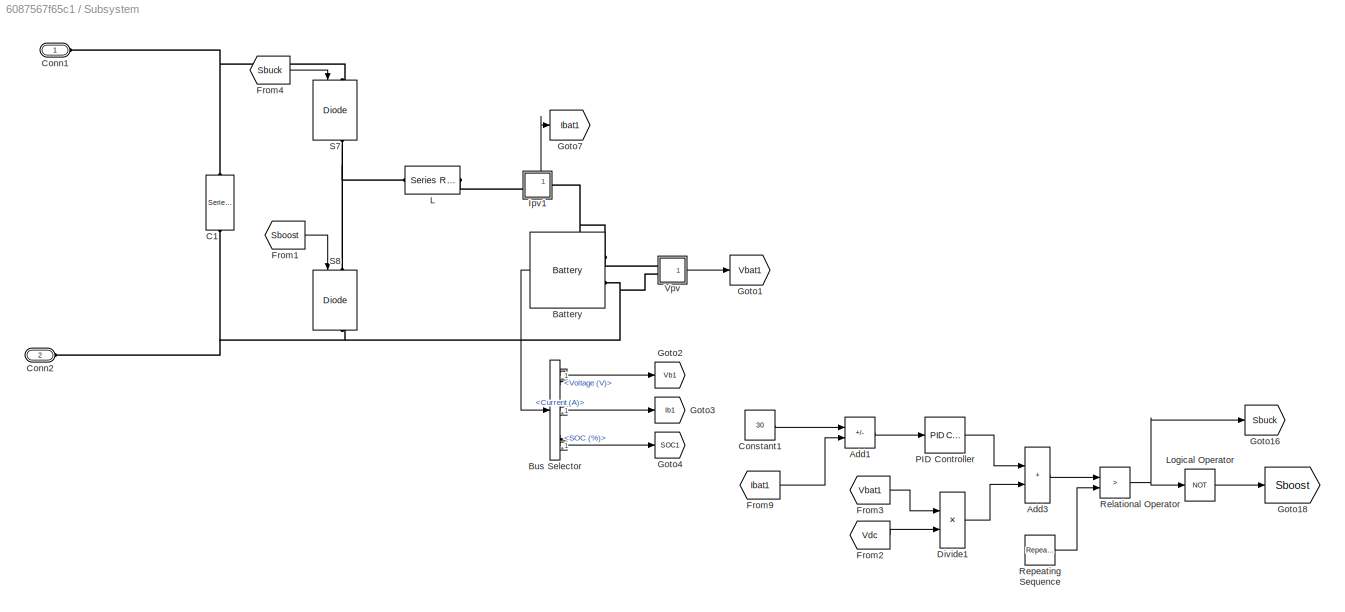
BLOCK [SubSystem] Subsystem
  NameLocation = top
  Ports = [0, 0, 0, 0, 0, 2]
  RequestExecContextInheritance = off
BLOCK [SubSystem] Subsystem/ 
  Permissions = NoReadOrWrite
  Ports = [1, 1]
  RequestExecContextInheritance = off
BLOCK [SubSystem] Subsystem/  
  Permissions = NoReadOrWrite
  Ports = [1, 1]
  RequestExecContextInheritance = off
BLOCK [SubSystem] Subsystem/   
  Permissions = NoReadOrWrite
  Ports = [1, 1]
  RequestExecContextInheritance = off
BLOCK [Clock] Subsystem/   /Clock20
BLOCK [Reference] Subsystem/   /Compare To Zero  REF=simulink/Logic and Bit
Operations/Compare
To Zero
  Ports = [1, 1]
  SourceBlock = simulink/Logic and Bit\nOperations/Compare\nTo Zero
  SourceProductBaseCode = SL
  SourceType = Compare To Zero
BLOCK [Reference] Subsystem/   /Discrete RMS value  REF=powerlib_extras/Discrete
Measurements/Discrete 
RMS value
  Ports = [1, 1]
  SourceBlock = powerlib_extras/Discrete\nMeasurements/Discrete \nRMS value
  SourceProductBaseCode = PS
  SourceType = Discrete RMS value
BLOCK [From] Subsystem/   /From13
  GotoTag = A2365
BLOCK [Inport] Subsystem/   /In1
BLOCK [Logic] Subsystem/   /Logical Operator
  AllPortsSameDT = off
  Inputs = 1
  OutDataTypeStr = boolean
  Ports = [1, 1]
BLOCK [Lookup] Subsystem/   /Lookup Table17
  InputValues = [0 1 4 6]
  SaturateOnIntegerOverflow = off
  Table = [48.3 48.3 48.15 48.15]
BLOCK [Outport] Subsystem/   /Out1
BLOCK [Sum] Subsystem/   /Sum3
  Inputs = |++
  Ports = [2, 1]
BLOCK [Switch] Subsystem/   /Switch
  InputSameDT = off
  SaturateOnIntegerOverflow = off
  Threshold = 0.5
BLOCK [Switch] Subsystem/   /Switch2
  InputSameDT = off
  SaturateOnIntegerOverflow = off
  Threshold = 0.5
BLOCK [UniformRandomNumber] Subsystem/   /Uniform Random Number9
  Maximum = 0.001
  Minimum = -0.001
  SampleTime = 50e-6
BLOCK [Clock] Subsystem/  /Clock19
BLOCK [Reference] Subsystem/  /Compare To Zero  REF=simulink/Logic and Bit
Operations/Compare
To Zero
  Ports = [1, 1]
  SourceBlock = simulink/Logic and Bit\nOperations/Compare\nTo Zero
  SourceProductBaseCode = SL
  SourceType = Compare To Zero
BLOCK [Reference] Subsystem/  /Discrete 2nd-Order Filter7  REF=powerlib_extras/Discrete 
Control Blocks/Discrete 
2nd-Order
Filter
  Ports = [1, 1]
  SourceBlock = powerlib_extras/Discrete \nControl Blocks/Discrete \n2nd-Order\nFilter
  SourceProductBaseCode = PS
  SourceType = Discrete 2nd-Order Filter
BLOCK [Reference] Subsystem/  /Discrete RMS value  REF=powerlib_extras/Discrete
Measurements/Discrete 
RMS value
  Ports = [1, 1]
  SourceBlock = powerlib_extras/Discrete\nMeasurements/Discrete \nRMS value
  SourceProductBaseCode = PS
  SourceType = Discrete RMS value
BLOCK [From] Subsystem/  /From13
  GotoTag = A2365
BLOCK [Inport] Subsystem/  /In1
BLOCK [Logic] Subsystem/  /Logical Operator
  AllPortsSameDT = off
  Inputs = 1
  OutDataTypeStr = boolean
  Ports = [1, 1]
BLOCK [Lookup] Subsystem/  /Lookup Table16
  InputValues = [0 1 1 1.1 4 4 4.1 6]
  SaturateOnIntegerOverflow = off
  Table = [0 0 82 80 80 -10 0 0]
BLOCK [Outport] Subsystem/  /Out1
BLOCK [Sum] Subsystem/  /Sum2
  Inputs = |++
  Ports = [2, 1]
BLOCK [Switch] Subsystem/  /Switch
  InputSameDT = off
  SaturateOnIntegerOverflow = off
  Threshold = 0.5
BLOCK [Switch] Subsystem/  /Switch2
  InputSameDT = off
  SaturateOnIntegerOverflow = off
  Threshold = 0.5
BLOCK [UniformRandomNumber] Subsystem/  /Uniform Random Number8
  Maximum = 0.1
  Minimum = -0.1
  SampleTime = 50e-6
BLOCK [Clock] Subsystem/ /Clock18
BLOCK [Reference] Subsystem/ /Compare To Zero  REF=simulink/Logic and Bit
Operations/Compare
To Zero
  Ports = [1, 1]
  SourceBlock = simulink/Logic and Bit\nOperations/Compare\nTo Zero
  SourceProductBaseCode = SL
  SourceType = Compare To Zero
BLOCK [Reference] Subsystem/ /Discrete 2nd-Order Filter6  REF=powerlib_extras/Discrete 
Control Blocks/Discrete 
2nd-Order
Filter
  Ports = [1, 1]
  SourceBlock = powerlib_extras/Discrete \nControl Blocks/Discrete \n2nd-Order\nFilter
  SourceProductBaseCode = PS
  SourceType = Discrete 2nd-Order Filter
BLOCK [Reference] Subsystem/ /Discrete RMS value  REF=powerlib_extras/Discrete
Measurements/Discrete 
RMS value
  Ports = [1, 1]
  SourceBlock = powerlib_extras/Discrete\nMeasurements/Discrete \nRMS value
  SourceProductBaseCode = PS
  SourceType = Discrete RMS value
BLOCK [From] Subsystem/ /From13
  GotoTag = A2365
BLOCK [Inport] Subsystem/ /In1
BLOCK [Logic] Subsystem/ /Logical Operator
  AllPortsSameDT = off
  Inputs = 1
  OutDataTypeStr = boolean
  Ports = [1, 1]
BLOCK [Lookup] Subsystem/ /Lookup Table15
  InputValues = [0 1 1 2 3 4 4 5 6]
  SaturateOnIntegerOverflow = off
  Table = [538 538 530 522 518 515 525 535 538]
BLOCK [Outport] Subsystem/ /Out1
BLOCK [Sum] Subsystem/ /Sum1
  Inputs = |++
  Ports = [2, 1]
BLOCK [Switch] Subsystem/ /Switch
  InputSameDT = off
  SaturateOnIntegerOverflow = off
  Threshold = 0.5
BLOCK [Switch] Subsystem/ /Switch2
  InputSameDT = off
  SaturateOnIntegerOverflow = off
  Threshold = 0.5
BLOCK [UniformRandomNumber] Subsystem/ /Uniform Random Number7
  Maximum = 0.1
  Minimum = -0.1
  SampleTime = 50e-6
BLOCK [Sum] Subsystem/Add1
  IconShape = rectangular
  Inputs = +-
  Ports = [2, 1]
BLOCK [Sum] Subsystem/Add3
  IconShape = rectangular
  Ports = [2, 1]
BLOCK [Reference] Subsystem/Battery  REF=spsBatteryLib/Battery
  Ports = [0, 1, 0, 0, 0, 2]
  SourceBlock = spsBatteryLib/Battery
  SourceProductBaseCode = PS
  SourceType = Battery
BLOCK [BusSelector] Subsystem/Bus Selector
  OutputSignals = Voltage (V),Current (A),SOC (%)
  Ports = [1, 3]
BLOCK [Reference] Subsystem/C1  REF=spsSeriesRLCBranchLib/Series RLC Branch
  NameLocation = left
  Ports = [0, 0, 0, 0, 0, 1, 1]
  SourceBlock = spsSeriesRLCBranchLib/Series RLC Branch
  SourceProductBaseCode = PS
  SourceType = Series RLC Branch
BLOCK [PMIOPort] Subsystem/Conn1
  Side = Left
BLOCK [PMIOPort] Subsystem/Conn2
  Port = 2
  Side = Left
BLOCK [Constant] Subsystem/Constant1
  Value = 30
BLOCK [Product] Subsystem/Divide1
  Inputs = */
  Ports = [2, 1]
BLOCK [From] Subsystem/From1
  GotoTag = Sboost
  TagVisibility = global
BLOCK [From] Subsystem/From2
  GotoTag = Vdc
  TagVisibility = global
BLOCK [From] Subsystem/From3
  GotoTag = Vbat1
  TagVisibility = global
BLOCK [From] Subsystem/From4
  GotoTag = Sbuck
  TagVisibility = global
BLOCK [From] Subsystem/From9
  GotoTag = Ibat1
  TagVisibility = global
BLOCK [Goto] Subsystem/Goto1
  GotoTag = Vbat1
  TagVisibility = global
BLOCK [Goto] Subsystem/Goto16
  GotoTag = Sbuck
  TagVisibility = global
BLOCK [Goto] Subsystem/Goto18
  GotoTag = Sboost
  TagVisibility = global
BLOCK [Goto] Subsystem/Goto2
  GotoTag = Vb1
  TagVisibility = global
BLOCK [Goto] Subsystem/Goto3
  GotoTag = Ib1
  TagVisibility = global
BLOCK [Goto] Subsystem/Goto4
  GotoTag = SOC1
  TagVisibility = global
BLOCK [Goto] Subsystem/Goto7
  GotoTag = Ibat1
  TagVisibility = global
BLOCK [SubSystem] Subsystem/Ipv1
  CloseFcn = sps_rtmsupport('CloseFcn',gcbh);
  CopyFcn = sps_rtmsupport('CopyFcn',gcbh);
  DeleteFcn = sps_rtmsupport('DeleteFcn',gcbh);
  DialogController = POWERSYS.PowerSysDialog
  LoadFcn = sps_rtmsupport('LoadFcn',gcbh);
  ModelCloseFcn = sps_rtmsupport('ModelCloseFcn',gcbh);
  NameLocation = top
  OpenFcn = sps_rtmsupport('OpenFcn',gcbh, [1 -2]);
  Ports = [0, 1, 0, 0, 0, 1, 1]
  PostSaveFcn = sps_rtmsupport('PostSaveFcn',gcbh);
  PreCopyFcn = sps_rtmsupport('PreCopyFcn',gcbh);
  PreDeleteFcn = sps_rtmsupport('PreDeleteFcn',gcbh);
  PreSaveFcn = sps_rtmsupport('PreSaveFcn',gcbh);
  RequestExecContextInheritance = off
  StartFcn = sps_rtmsupport('StartFcn',gcbh);
  StopFcn = sps_rtmsupport('StopFcn',gcbh);
  UndoDeleteFcn = sps_rtmsupport('UndoDeleteFcn',gcbh);
  UserDataPersistent = on
BLOCK [PMIOPort] Subsystem/Ipv1/+
  Side = Left
BLOCK [PMIOPort] Subsystem/Ipv1/-
  Port = 2
  Side = Right
BLOCK [Reference] Subsystem/Ipv1/Model  REF=spsMeasurementModel/Complex
  Ports = [1, 1]
  SourceBlock = spsMeasurementModel/Complex
  SourceProductBaseCode = PS
  SourceType = SubSystem
BLOCK [SubSystem] Subsystem/Ipv1/Subsystem
  Permissions = NoReadOrWrite
  Ports = [0, 0, 0, 0, 0, 1, 1]
  RequestExecContextInheritance = off
BLOCK [PMIOPort] Subsystem/Ipv1/Subsystem/Conn1
  Side = Left
BLOCK [PMIOPort] Subsystem/Ipv1/Subsystem/Conn2
  Port = 2
  Side = Right
BLOCK [Reference] Subsystem/Ipv1/Subsystem/Current Measurement  REF=spsCurrentMeasurementLib/Current Measurement
  Ports = [0, 1, 0, 0, 0, 1, 1]
  SourceBlock = spsCurrentMeasurementLib/Current Measurement
  SourceProductBaseCode = PS
  SourceType = Current Measurement
  UserDataPersistent = on
BLOCK [Goto] Subsystem/Ipv1/Subsystem/Goto
  GotoTag = Tsevrdaseffgi1
  TagVisibility = global
BLOCK [Reference] Subsystem/Ipv1/Subsystem/Series RLC Branch  REF=spsSeriesRLCBranchLib/Series RLC Branch
  Ports = [0, 0, 0, 0, 0, 1, 1]
  SourceBlock = spsSeriesRLCBranchLib/Series RLC Branch
  SourceProductBaseCode = PS
  SourceType = Series RLC Branch
BLOCK [SubSystem] Subsystem/Ipv1/Subsystem/do not delete this gain
  Ports = [1, 1]
  RequestExecContextInheritance = off
BLOCK [Clock] Subsystem/Ipv1/Subsystem/do not delete this gain/Clock5
BLOCK [Clock] Subsystem/Ipv1/Subsystem/do not delete this gain/Clock6
BLOCK [Reference] Subsystem/Ipv1/Subsystem/do not delete this gain/Compare To Zero  REF=simulink/Logic and Bit
Operations/Compare
To Zero
  Ports = [1, 1]
  SourceBlock = simulink/Logic and Bit\nOperations/Compare\nTo Zero
  SourceProductBaseCode = SL
  SourceType = Compare To Zero
BLOCK [Reference] Subsystem/Ipv1/Subsystem/do not delete this gain/Discrete 2nd-Order Filter1  REF=powerlib_extras/Discrete 
Control Blocks/Discrete 
2nd-Order
Filter
  Ports = [1, 1]
  SourceBlock = powerlib_extras/Discrete \nControl Blocks/Discrete \n2nd-Order\nFilter
  SourceProductBaseCode = PS
  SourceType = Discrete 2nd-Order Filter
BLOCK [Reference] Subsystem/Ipv1/Subsystem/do not delete this gain/Discrete RMS value  REF=powerlib_extras/Discrete
Measurements/Discrete 
RMS value
  Ports = [1, 1]
  SourceBlock = powerlib_extras/Discrete\nMeasurements/Discrete \nRMS value
  SourceProductBaseCode = PS
  SourceType = Discrete RMS value
BLOCK [From] Subsystem/Ipv1/Subsystem/do not delete this gain/From13
  GotoTag = A2365
BLOCK [Inport] Subsystem/Ipv1/Subsystem/do not delete this gain/In1
BLOCK [Logic] Subsystem/Ipv1/Subsystem/do not delete this gain/Logical Operator
  AllPortsSameDT = off
  Inputs = 1
  OutDataTypeStr = boolean
  Ports = [1, 1]
BLOCK [Lookup] Subsystem/Ipv1/Subsystem/do not delete this gain/Lookup Table5
  InputValues = [0 0.02 0.02 0.026 0.026 0.032 0.032 0.04 0.04 0.046 0.046 0.054 0.054 0.06 0.06 0.066 0.066 0.072 0.072 0.078 0.078 0.08 0.08 0.1 ]
  SaturateOnIntegerOverflow = off
  Table = [0 0 0.5 0.5 1 1 2.5 2.5 3.5 3.5 4.8 4.8 5.2 5.2 5.5 5.5 5.8 5.8 6 6 6.2 6.2 6.2 6.2]
BLOCK [Outport] Subsystem/Ipv1/Subsystem/do not delete this gain/Out1
BLOCK [Sin] Subsystem/Ipv1/Subsystem/do not delete this gain/Sine Wave4
  Amplitude = 0.03
  Bias = 6.2
  Frequency = 2*pi*500
  Ports = [0, 1]
BLOCK [Switch] Subsystem/Ipv1/Subsystem/do not delete this gain/Switch
  InputSameDT = off
  SaturateOnIntegerOverflow = off
  Threshold = 0.5
BLOCK [Switch] Subsystem/Ipv1/Subsystem/do not delete this gain/Switch1
  Criteria = u2 > Threshold
  InputSameDT = off
  SaturateOnIntegerOverflow = off
  Threshold = 0.09
BLOCK [Switch] Subsystem/Ipv1/Subsystem/do not delete this gain/Switch2
  InputSameDT = off
  SaturateOnIntegerOverflow = off
  Threshold = 0.5
BLOCK [Gain] Subsystem/Ipv1/do not delete this gain
BLOCK [Outport] Subsystem/Ipv1/i
  InitialOutput = 0
BLOCK [From] Subsystem/Ipv1/source1
  GotoTag = Tsevrdaseffgi1
  TagVisibility = global
BLOCK [Reference] Subsystem/L  REF=spsSeriesRLCBranchLib/Series RLC Branch
  NameLocation = top
  Ports = [0, 0, 0, 0, 0, 1, 1]
  SourceBlock = spsSeriesRLCBranchLib/Series RLC Branch
  SourceProductBaseCode = PS
  SourceType = Series RLC Branch
BLOCK [Logic] Subsystem/Logical Operator
  AllPortsSameDT = off
  Operator = NOT
  OutDataTypeStr = boolean
  Ports = [1, 1]
BLOCK [Reference] Subsystem/PID Controller  REF=slpidlib/PID Controller
  Ports = [1, 1]
  SourceBlock = slpidlib/PID Controller
  SourceProductBaseCode = SL
  SourceType = PID 1dof
BLOCK [RelationalOperator] Subsystem/Relational Operator
  InputSameDT = off
  Operator = >
  OutDataTypeStr = boolean
  Ports = [2, 1]
BLOCK [Reference] Subsystem/Repeating Sequence  REF=simulink/Sources/Repeating
Sequence
  Ports = [0, 1]
  SourceBlock = simulink/Sources/Repeating\nSequence
  SourceProductBaseCode = SL
  SourceType = Repeating table
BLOCK [Reference] Subsystem/S7  REF=spsIGBTDiodeLib/IGBT//Diode
  NameLocation = left
  Ports = [1, 1, 0, 0, 0, 1, 1]
  SourceBlock = spsIGBTDiodeLib/IGBT//Diode
  SourceProductBaseCode = PS
  SourceType = IGBT/Diode
BLOCK [Reference] Subsystem/S8  REF=spsIGBTDiodeLib/IGBT//Diode
  NameLocation = left
  Ports = [1, 1, 0, 0, 0, 1, 1]
  SourceBlock = spsIGBTDiodeLib/IGBT//Diode
  SourceProductBaseCode = PS
  SourceType = IGBT/Diode
BLOCK [SubSystem] Subsystem/Vpv
  CloseFcn = sps_rtmsupport('CloseFcn',gcbh);
  CopyFcn = sps_rtmsupport('CopyFcn',gcbh); powericon('psbloadfunction',gcb,'Measurement Block','UpdateGotoTag');
  DeleteFcn = sps_rtmsupport('DeleteFcn',gcbh);
  DialogController = POWERSYS.PowerSysDialog
  LoadFcn = sps_rtmsupport('LoadFcn',gcbh);
  ModelCloseFcn = sps_rtmsupport('ModelCloseFcn',gcbh);
  OpenFcn = sps_rtmsupport('OpenFcn',gcbh, [1 -2]);
  Ports = [0, 1, 0, 0, 0, 2]
  PostSaveFcn = sps_rtmsupport('PostSaveFcn',gcbh);
  PreCopyFcn = sps_rtmsupport('PreCopyFcn',gcbh);
  PreDeleteFcn = sps_rtmsupport('PreDeleteFcn',gcbh);
  PreSaveFcn = sps_rtmsupport('PreSaveFcn',gcbh);
  RequestExecContextInheritance = off
  StartFcn = sps_rtmsupport('StartFcn',gcbh);
  StopFcn = sps_rtmsupport('StopFcn',gcbh);
  UndoDeleteFcn = sps_rtmsupport('UndoDeleteFcn',gcbh);
  UserDataPersistent = on
BLOCK [PMIOPort] Subsystem/Vpv/+
  Side = Left
BLOCK [PMIOPort] Subsystem/Vpv/-
  Port = 2
  Side = Left
BLOCK [Reference] Subsystem/Vpv/Model  REF=spsMeasurementModel/Complex
  Ports = [1, 1]
  SourceBlock = spsMeasurementModel/Complex
  SourceProductBaseCode = PS
  SourceType = SubSystem
BLOCK [From] Subsystem/Vpv/Source
  GotoTag = Tsevrdaseffgv2
  TagVisibility = global
BLOCK [SubSystem] Subsystem/Vpv/Subsystem
  Permissions = NoReadOrWrite
  Ports = [0, 0, 0, 0, 0, 1, 1]
  RequestExecContextInheritance = off
BLOCK [PMIOPort] Subsystem/Vpv/Subsystem/Conn1
  Side = Left
BLOCK [PMIOPort] Subsystem/Vpv/Subsystem/Conn2
  Port = 2
  Side = Right
BLOCK [Goto] Subsystem/Vpv/Subsystem/Goto
  GotoTag = Tsevrdaseffgv2
  TagVisibility = global
BLOCK [Reference] Subsystem/Vpv/Subsystem/Series RLC Branch  REF=spsSeriesRLCBranchLib/Series RLC Branch
  Ports = [0, 0, 0, 0, 0, 1, 1]
  SourceBlock = spsSeriesRLCBranchLib/Series RLC Branch
  SourceProductBaseCode = PS
  SourceType = Series RLC Branch
BLOCK [Reference] Subsystem/Vpv/Subsystem/Voltage Measurement  REF=spsVoltageMeasurementLib/Voltage Measurement
  Ports = [0, 1, 0, 0, 0, 2]
  SourceBlock = spsVoltageMeasurementLib/Voltage Measurement
  SourceProductBaseCode = PS
  SourceType = Voltage Measurement
  UserDataPersistent = on
BLOCK [SubSystem] Subsystem/Vpv/Subsystem/do not delete this gain
  Ports = [1, 1]
  RequestExecContextInheritance = off
BLOCK [Clock] Subsystem/Vpv/Subsystem/do not delete this gain/Clock7
BLOCK [Clock] Subsystem/Vpv/Subsystem/do not delete this gain/Clock8
BLOCK [Reference] Subsystem/Vpv/Subsystem/do not delete this gain/Compare To Zero  REF=simulink/Logic and Bit
Operations/Compare
To Zero
  Ports = [1, 1]
  SourceBlock = simulink/Logic and Bit\nOperations/Compare\nTo Zero
  SourceProductBaseCode = SL
  SourceType = Compare To Zero
BLOCK [Reference] Subsystem/Vpv/Subsystem/do not delete this gain/Discrete 2nd-Order Filter2  REF=powerlib_extras/Discrete 
Control Blocks/Discrete 
2nd-Order
Filter
  Ports = [1, 1]
  SourceBlock = powerlib_extras/Discrete \nControl Blocks/Discrete \n2nd-Order\nFilter
  SourceProductBaseCode = PS
  SourceType = Discrete 2nd-Order Filter
BLOCK [Reference] Subsystem/Vpv/Subsystem/do not delete this gain/Discrete RMS value  REF=powerlib_extras/Discrete
Measurements/Discrete 
RMS value
  Ports = [1, 1]
  SourceBlock = powerlib_extras/Discrete\nMeasurements/Discrete \nRMS value
  SourceProductBaseCode = PS
  SourceType = Discrete RMS value
BLOCK [From] Subsystem/Vpv/Subsystem/do not delete this gain/From13
  GotoTag = A2365
BLOCK [Gain] Subsystem/Vpv/Subsystem/do not delete this gain/Gain1
  Gain = -1
BLOCK [Inport] Subsystem/Vpv/Subsystem/do not delete this gain/In1
BLOCK [Logic] Subsystem/Vpv/Subsystem/do not delete this gain/Logical Operator
  AllPortsSameDT = off
  Inputs = 1
  OutDataTypeStr = boolean
  Ports = [1, 1]
BLOCK [Lookup] Subsystem/Vpv/Subsystem/do not delete this gain/Lookup Table6
  InputValues = [0 0.02 0.02 0.026 0.026 0.032 0.032 0.04 0.04 0.046 0.046 0.054 0.054 0.06 0.06 0.066 0.066 0.072 0.072 0.078 0.078 0.08 0.08 0.1 ]
  SaturateOnIntegerOverflow = off
  Table = [250 250 245 245 242 242 240 240 235 235 230 230 225 225 220 220 215 215 210 210 205 205 200 200]
BLOCK [Outport] Subsystem/Vpv/Subsystem/do not delete this gain/Out1
BLOCK [Scope] Subsystem/Vpv/Subsystem/do not delete this gain/Scope9
  Floating = off
  NumInputPorts = 1
  Ports = [1]
  ScopeSpecificationString = C++SS(StrPVP('SaveName','ScopeData1'),StrPVP('LimitDataPoints','on'),StrPVP('DataFormat','Array'),StrPVP('Decimation','1'),StrPVP('BlockParamSampleInput','off'))
BLOCK [Sin] Subsystem/Vpv/Subsystem/do not delete this gain/Sine Wave5
  Bias = -200
  Frequency = 2*pi*500
  Ports = [0, 1]
BLOCK [Switch] Subsystem/Vpv/Subsystem/do not delete this gain/Switch
  InputSameDT = off
  SaturateOnIntegerOverflow = off
  Threshold = 0.5
BLOCK [Switch] Subsystem/Vpv/Subsystem/do not delete this gain/Switch1
  Criteria = u2 > Threshold
  InputSameDT = off
  SaturateOnIntegerOverflow = off
  Threshold = 0.09
BLOCK [Switch] Subsystem/Vpv/Subsystem/do not delete this gain/Switch2
  InputSameDT = off
  SaturateOnIntegerOverflow = off
  Threshold = 0.5
BLOCK [Gain] Subsystem/Vpv/do not delete this gain
BLOCK [Outport] Subsystem/Vpv/v
  InitialOutput = 0
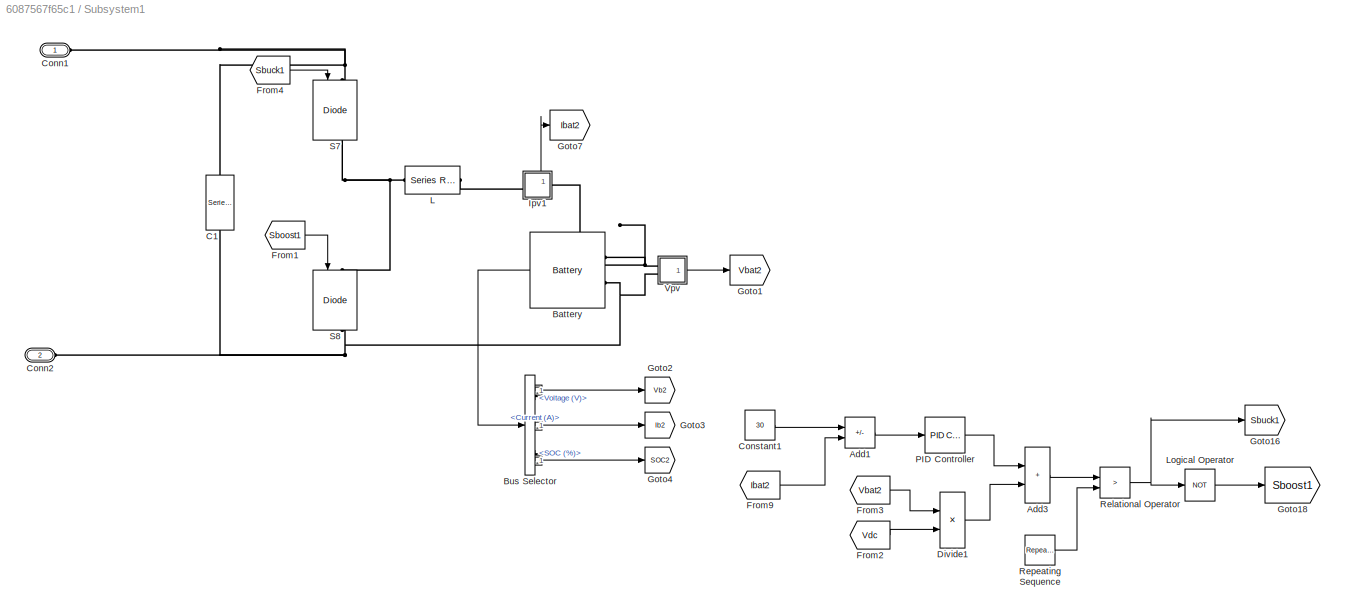
BLOCK [SubSystem] Subsystem1
  NameLocation = top
  Ports = [0, 0, 0, 0, 0, 2]
  RequestExecContextInheritance = off
BLOCK [SubSystem] Subsystem1/ 
  Permissions = NoReadOrWrite
  Ports = [1, 1]
  RequestExecContextInheritance = off
BLOCK [SubSystem] Subsystem1/  
  Permissions = NoReadOrWrite
  Ports = [1, 1]
  RequestExecContextInheritance = off
BLOCK [SubSystem] Subsystem1/   
  Permissions = NoReadOrWrite
  Ports = [1, 1]
  RequestExecContextInheritance = off
BLOCK [Clock] Subsystem1/   /Clock23
BLOCK [Reference] Subsystem1/   /Compare To Zero  REF=simulink/Logic and Bit
Operations/Compare
To Zero
  Ports = [1, 1]
  SourceBlock = simulink/Logic and Bit\nOperations/Compare\nTo Zero
  SourceProductBaseCode = SL
  SourceType = Compare To Zero
BLOCK [Reference] Subsystem1/   /Discrete RMS value  REF=powerlib_extras/Discrete
Measurements/Discrete 
RMS value
  Ports = [1, 1]
  SourceBlock = powerlib_extras/Discrete\nMeasurements/Discrete \nRMS value
  SourceProductBaseCode = PS
  SourceType = Discrete RMS value
BLOCK [From] Subsystem1/   /From13
  GotoTag = A2365
BLOCK [Inport] Subsystem1/   /In1
BLOCK [Logic] Subsystem1/   /Logical Operator
  AllPortsSameDT = off
  Inputs = 1
  OutDataTypeStr = boolean
  Ports = [1, 1]
BLOCK [Lookup] Subsystem1/   /Lookup Table20
  InputValues = [0 4 6]
  SaturateOnIntegerOverflow = off
  Table = [50 50 50.05]
BLOCK [Outport] Subsystem1/   /Out1
BLOCK [Sum] Subsystem1/   /Sum6
  Inputs = |++
  Ports = [2, 1]
BLOCK [Switch] Subsystem1/   /Switch
  InputSameDT = off
  SaturateOnIntegerOverflow = off
  Threshold = 0.5
BLOCK [Switch] Subsystem1/   /Switch2
  InputSameDT = off
  SaturateOnIntegerOverflow = off
  Threshold = 0.5
BLOCK [UniformRandomNumber] Subsystem1/   /Uniform Random Number13
  Maximum = 0.0005
  Minimum = -0.0005
  SampleTime = 50e-6
BLOCK [Clock] Subsystem1/  /Clock22
BLOCK [Reference] Subsystem1/  /Compare To Zero  REF=simulink/Logic and Bit
Operations/Compare
To Zero
  Ports = [1, 1]
  SourceBlock = simulink/Logic and Bit\nOperations/Compare\nTo Zero
  SourceProductBaseCode = SL
  SourceType = Compare To Zero
BLOCK [Reference] Subsystem1/  /Discrete 2nd-Order Filter9  REF=powerlib_extras/Discrete 
Control Blocks/Discrete 
2nd-Order
Filter
  Ports = [1, 1]
  SourceBlock = powerlib_extras/Discrete \nControl Blocks/Discrete \n2nd-Order\nFilter
  SourceProductBaseCode = PS
  SourceType = Discrete 2nd-Order Filter
BLOCK [Reference] Subsystem1/  /Discrete RMS value  REF=powerlib_extras/Discrete
Measurements/Discrete 
RMS value
  Ports = [1, 1]
  SourceBlock = powerlib_extras/Discrete\nMeasurements/Discrete \nRMS value
  SourceProductBaseCode = PS
  SourceType = Discrete RMS value
BLOCK [From] Subsystem1/  /From13
  GotoTag = A2365
BLOCK [Inport] Subsystem1/  /In1
BLOCK [Logic] Subsystem1/  /Logical Operator
  AllPortsSameDT = off
  Inputs = 1
  OutDataTypeStr = boolean
  Ports = [1, 1]
BLOCK [Lookup] Subsystem1/  /Lookup Table19
  InputValues = [0 4 4 6]
  SaturateOnIntegerOverflow = off
  Table = [0 0 -38 -38]
BLOCK [Outport] Subsystem1/  /Out1
BLOCK [Sum] Subsystem1/  /Sum5
  Inputs = |++
  Ports = [2, 1]
BLOCK [Switch] Subsystem1/  /Switch
  InputSameDT = off
  SaturateOnIntegerOverflow = off
  Threshold = 0.5
BLOCK [Switch] Subsystem1/  /Switch2
  InputSameDT = off
  SaturateOnIntegerOverflow = off
  Threshold = 0.5
BLOCK [UniformRandomNumber] Subsystem1/  /Uniform Random Number12
  Maximum = 0.1
  Minimum = -0.1
  SampleTime = 50e-6
BLOCK [Clock] Subsystem1/ /Clock21
BLOCK [Reference] Subsystem1/ /Compare To Zero  REF=simulink/Logic and Bit
Operations/Compare
To Zero
  Ports = [1, 1]
  SourceBlock = simulink/Logic and Bit\nOperations/Compare\nTo Zero
  SourceProductBaseCode = SL
  SourceType = Compare To Zero
BLOCK [Reference] Subsystem1/ /Discrete 2nd-Order Filter8  REF=powerlib_extras/Discrete 
Control Blocks/Discrete 
2nd-Order
Filter
  Ports = [1, 1]
  SourceBlock = powerlib_extras/Discrete \nControl Blocks/Discrete \n2nd-Order\nFilter
  SourceProductBaseCode = PS
  SourceType = Discrete 2nd-Order Filter
BLOCK [Reference] Subsystem1/ /Discrete RMS value  REF=powerlib_extras/Discrete
Measurements/Discrete 
RMS value
  Ports = [1, 1]
  SourceBlock = powerlib_extras/Discrete\nMeasurements/Discrete \nRMS value
  SourceProductBaseCode = PS
  SourceType = Discrete RMS value
BLOCK [From] Subsystem1/ /From13
  GotoTag = A2365
BLOCK [Inport] Subsystem1/ /In1
BLOCK [Logic] Subsystem1/ /Logical Operator
  AllPortsSameDT = off
  Inputs = 1
  OutDataTypeStr = boolean
  Ports = [1, 1]
BLOCK [Lookup] Subsystem1/ /Lookup Table18
  InputValues = [0 4 4 5 6]
  SaturateOnIntegerOverflow = off
  Table = [538.5 538.5 543 546 548]
BLOCK [Outport] Subsystem1/ /Out1
BLOCK [Sum] Subsystem1/ /Sum4
  Inputs = |++
  Ports = [2, 1]
BLOCK [Switch] Subsystem1/ /Switch
  InputSameDT = off
  SaturateOnIntegerOverflow = off
  Threshold = 0.5
BLOCK [Switch] Subsystem1/ /Switch2
  InputSameDT = off
  SaturateOnIntegerOverflow = off
  Threshold = 0.5
BLOCK [UniformRandomNumber] Subsystem1/ /Uniform Random Number10
  Maximum = 0.1
  Minimum = -0.1
  SampleTime = 50e-6
BLOCK [Sum] Subsystem1/Add1
  IconShape = rectangular
  Inputs = +-
  Ports = [2, 1]
BLOCK [Sum] Subsystem1/Add3
  IconShape = rectangular
  Ports = [2, 1]
BLOCK [Reference] Subsystem1/Battery  REF=spsBatteryLib/Battery
  Ports = [0, 1, 0, 0, 0, 2]
  SourceBlock = spsBatteryLib/Battery
  SourceProductBaseCode = PS
  SourceType = Battery
BLOCK [BusSelector] Subsystem1/Bus Selector
  OutputSignals = Voltage (V),Current (A),SOC (%)
  Ports = [1, 3]
BLOCK [Reference] Subsystem1/C1  REF=spsSeriesRLCBranchLib/Series RLC Branch
  NameLocation = left
  Ports = [0, 0, 0, 0, 0, 1, 1]
  SourceBlock = spsSeriesRLCBranchLib/Series RLC Branch
  SourceProductBaseCode = PS
  SourceType = Series RLC Branch
BLOCK [PMIOPort] Subsystem1/Conn1
  Side = Left
BLOCK [PMIOPort] Subsystem1/Conn2
  Port = 2
  Side = Left
BLOCK [Constant] Subsystem1/Constant1
  Value = 30
BLOCK [Product] Subsystem1/Divide1
  Inputs = */
  Ports = [2, 1]
BLOCK [From] Subsystem1/From1
  GotoTag = Sboost1
  TagVisibility = global
BLOCK [From] Subsystem1/From2
  GotoTag = Vdc
  TagVisibility = global
BLOCK [From] Subsystem1/From3
  GotoTag = Vbat2
  TagVisibility = global
BLOCK [From] Subsystem1/From4
  GotoTag = Sbuck1
  TagVisibility = global
BLOCK [From] Subsystem1/From9
  GotoTag = Ibat2
  TagVisibility = global
BLOCK [Goto] Subsystem1/Goto1
  GotoTag = Vbat2
  TagVisibility = global
BLOCK [Goto] Subsystem1/Goto16
  GotoTag = Sbuck1
  TagVisibility = global
BLOCK [Goto] Subsystem1/Goto18
  GotoTag = Sboost1
  TagVisibility = global
BLOCK [Goto] Subsystem1/Goto2
  GotoTag = Vb2
  TagVisibility = global
BLOCK [Goto] Subsystem1/Goto3
  GotoTag = Ib2
  TagVisibility = global
BLOCK [Goto] Subsystem1/Goto4
  GotoTag = SOC2
  TagVisibility = global
BLOCK [Goto] Subsystem1/Goto7
  GotoTag = Ibat2
  TagVisibility = global
BLOCK [SubSystem] Subsystem1/Ipv1
  CloseFcn = sps_rtmsupport('CloseFcn',gcbh);
  CopyFcn = sps_rtmsupport('CopyFcn',gcbh);
  DeleteFcn = sps_rtmsupport('DeleteFcn',gcbh);
  DialogController = POWERSYS.PowerSysDialog
  LoadFcn = sps_rtmsupport('LoadFcn',gcbh);
  ModelCloseFcn = sps_rtmsupport('ModelCloseFcn',gcbh);
  NameLocation = top
  OpenFcn = sps_rtmsupport('OpenFcn',gcbh, [1 -2]);
  Ports = [0, 1, 0, 0, 0, 1, 1]
  PostSaveFcn = sps_rtmsupport('PostSaveFcn',gcbh);
  PreCopyFcn = sps_rtmsupport('PreCopyFcn',gcbh);
  PreDeleteFcn = sps_rtmsupport('PreDeleteFcn',gcbh);
  PreSaveFcn = sps_rtmsupport('PreSaveFcn',gcbh);
  RequestExecContextInheritance = off
  StartFcn = sps_rtmsupport('StartFcn',gcbh);
  StopFcn = sps_rtmsupport('StopFcn',gcbh);
  UndoDeleteFcn = sps_rtmsupport('UndoDeleteFcn',gcbh);
  UserDataPersistent = on
BLOCK [PMIOPort] Subsystem1/Ipv1/+
  Side = Left
BLOCK [PMIOPort] Subsystem1/Ipv1/-
  Port = 2
  Side = Right
BLOCK [Reference] Subsystem1/Ipv1/Model  REF=spsMeasurementModel/Complex
  Ports = [1, 1]
  SourceBlock = spsMeasurementModel/Complex
  SourceProductBaseCode = PS
  SourceType = SubSystem
BLOCK [SubSystem] Subsystem1/Ipv1/Subsystem
  Permissions = NoReadOrWrite
  Ports = [0, 0, 0, 0, 0, 1, 1]
  RequestExecContextInheritance = off
BLOCK [PMIOPort] Subsystem1/Ipv1/Subsystem/Conn1
  Side = Left
BLOCK [PMIOPort] Subsystem1/Ipv1/Subsystem/Conn2
  Port = 2
  Side = Right
BLOCK [Reference] Subsystem1/Ipv1/Subsystem/Current Measurement  REF=spsCurrentMeasurementLib/Current Measurement
  Ports = [0, 1, 0, 0, 0, 1, 1]
  SourceBlock = spsCurrentMeasurementLib/Current Measurement
  SourceProductBaseCode = PS
  SourceType = Current Measurement
  UserDataPersistent = on
BLOCK [Goto] Subsystem1/Ipv1/Subsystem/Goto
  GotoTag = Tsevrdaseffgi2
  TagVisibility = global
BLOCK [Reference] Subsystem1/Ipv1/Subsystem/Series RLC Branch  REF=spsSeriesRLCBranchLib/Series RLC Branch
  Ports = [0, 0, 0, 0, 0, 1, 1]
  SourceBlock = spsSeriesRLCBranchLib/Series RLC Branch
  SourceProductBaseCode = PS
  SourceType = Series RLC Branch
BLOCK [SubSystem] Subsystem1/Ipv1/Subsystem/do not delete this gain
  Ports = [1, 1]
  RequestExecContextInheritance = off
BLOCK [Clock] Subsystem1/Ipv1/Subsystem/do not delete this gain/Clock5
BLOCK [Clock] Subsystem1/Ipv1/Subsystem/do not delete this gain/Clock6
BLOCK [Reference] Subsystem1/Ipv1/Subsystem/do not delete this gain/Compare To Zero  REF=simulink/Logic and Bit
Operations/Compare
To Zero
  Ports = [1, 1]
  SourceBlock = simulink/Logic and Bit\nOperations/Compare\nTo Zero
  SourceProductBaseCode = SL
  SourceType = Compare To Zero
BLOCK [Reference] Subsystem1/Ipv1/Subsystem/do not delete this gain/Discrete 2nd-Order Filter1  REF=powerlib_extras/Discrete 
Control Blocks/Discrete 
2nd-Order
Filter
  Ports = [1, 1]
  SourceBlock = powerlib_extras/Discrete \nControl Blocks/Discrete \n2nd-Order\nFilter
  SourceProductBaseCode = PS
  SourceType = Discrete 2nd-Order Filter
BLOCK [Reference] Subsystem1/Ipv1/Subsystem/do not delete this gain/Discrete RMS value  REF=powerlib_extras/Discrete
Measurements/Discrete 
RMS value
  Ports = [1, 1]
  SourceBlock = powerlib_extras/Discrete\nMeasurements/Discrete \nRMS value
  SourceProductBaseCode = PS
  SourceType = Discrete RMS value
BLOCK [From] Subsystem1/Ipv1/Subsystem/do not delete this gain/From13
  GotoTag = A2365
BLOCK [Inport] Subsystem1/Ipv1/Subsystem/do not delete this gain/In1
BLOCK [Logic] Subsystem1/Ipv1/Subsystem/do not delete this gain/Logical Operator
  AllPortsSameDT = off
  Inputs = 1
  OutDataTypeStr = boolean
  Ports = [1, 1]
BLOCK [Lookup] Subsystem1/Ipv1/Subsystem/do not delete this gain/Lookup Table5
  InputValues = [0 0.02 0.02 0.026 0.026 0.032 0.032 0.04 0.04 0.046 0.046 0.054 0.054 0.06 0.06 0.066 0.066 0.072 0.072 0.078 0.078 0.08 0.08 0.1 ]
  SaturateOnIntegerOverflow = off
  Table = [0 0 0.5 0.5 1 1 2.5 2.5 3.5 3.5 4.8 4.8 5.2 5.2 5.5 5.5 5.8 5.8 6 6 6.2 6.2 6.2 6.2]
BLOCK [Outport] Subsystem1/Ipv1/Subsystem/do not delete this gain/Out1
BLOCK [Sin] Subsystem1/Ipv1/Subsystem/do not delete this gain/Sine Wave4
  Amplitude = 0.03
  Bias = 6.2
  Frequency = 2*pi*500
  Ports = [0, 1]
BLOCK [Switch] Subsystem1/Ipv1/Subsystem/do not delete this gain/Switch
  InputSameDT = off
  SaturateOnIntegerOverflow = off
  Threshold = 0.5
BLOCK [Switch] Subsystem1/Ipv1/Subsystem/do not delete this gain/Switch1
  Criteria = u2 > Threshold
  InputSameDT = off
  SaturateOnIntegerOverflow = off
  Threshold = 0.09
BLOCK [Switch] Subsystem1/Ipv1/Subsystem/do not delete this gain/Switch2
  InputSameDT = off
  SaturateOnIntegerOverflow = off
  Threshold = 0.5
BLOCK [Gain] Subsystem1/Ipv1/do not delete this gain
BLOCK [Outport] Subsystem1/Ipv1/i
  InitialOutput = 0
BLOCK [From] Subsystem1/Ipv1/source1
  GotoTag = Tsevrdaseffgi2
  TagVisibility = global
BLOCK [Reference] Subsystem1/L  REF=spsSeriesRLCBranchLib/Series RLC Branch
  NameLocation = top
  Ports = [0, 0, 0, 0, 0, 1, 1]
  SourceBlock = spsSeriesRLCBranchLib/Series RLC Branch
  SourceProductBaseCode = PS
  SourceType = Series RLC Branch
BLOCK [Logic] Subsystem1/Logical Operator
  AllPortsSameDT = off
  Operator = NOT
  OutDataTypeStr = boolean
  Ports = [1, 1]
BLOCK [Reference] Subsystem1/PID Controller  REF=slpidlib/PID Controller
  Ports = [1, 1]
  SourceBlock = slpidlib/PID Controller
  SourceProductBaseCode = SL
  SourceType = PID 1dof
BLOCK [RelationalOperator] Subsystem1/Relational Operator
  InputSameDT = off
  Operator = >
  OutDataTypeStr = boolean
  Ports = [2, 1]
BLOCK [Reference] Subsystem1/Repeating Sequence  REF=simulink/Sources/Repeating
Sequence
  Ports = [0, 1]
  SourceBlock = simulink/Sources/Repeating\nSequence
  SourceProductBaseCode = SL
  SourceType = Repeating table
BLOCK [Reference] Subsystem1/S7  REF=spsIGBTDiodeLib/IGBT//Diode
  NameLocation = left
  Ports = [1, 1, 0, 0, 0, 1, 1]
  SourceBlock = spsIGBTDiodeLib/IGBT//Diode
  SourceProductBaseCode = PS
  SourceType = IGBT/Diode
BLOCK [Reference] Subsystem1/S8  REF=spsIGBTDiodeLib/IGBT//Diode
  NameLocation = left
  Ports = [1, 1, 0, 0, 0, 1, 1]
  SourceBlock = spsIGBTDiodeLib/IGBT//Diode
  SourceProductBaseCode = PS
  SourceType = IGBT/Diode
BLOCK [SubSystem] Subsystem1/Vpv
  CloseFcn = sps_rtmsupport('CloseFcn',gcbh);
  CopyFcn = sps_rtmsupport('CopyFcn',gcbh); powericon('psbloadfunction',gcb,'Measurement Block','UpdateGotoTag');
  DeleteFcn = sps_rtmsupport('DeleteFcn',gcbh);
  DialogController = POWERSYS.PowerSysDialog
  LoadFcn = sps_rtmsupport('LoadFcn',gcbh);
  ModelCloseFcn = sps_rtmsupport('ModelCloseFcn',gcbh);
  OpenFcn = sps_rtmsupport('OpenFcn',gcbh, [1 -2]);
  Ports = [0, 1, 0, 0, 0, 2]
  PostSaveFcn = sps_rtmsupport('PostSaveFcn',gcbh);
  PreCopyFcn = sps_rtmsupport('PreCopyFcn',gcbh);
  PreDeleteFcn = sps_rtmsupport('PreDeleteFcn',gcbh);
  PreSaveFcn = sps_rtmsupport('PreSaveFcn',gcbh);
  RequestExecContextInheritance = off
  StartFcn = sps_rtmsupport('StartFcn',gcbh);
  StopFcn = sps_rtmsupport('StopFcn',gcbh);
  UndoDeleteFcn = sps_rtmsupport('UndoDeleteFcn',gcbh);
  UserDataPersistent = on
BLOCK [PMIOPort] Subsystem1/Vpv/+
  Side = Left
BLOCK [PMIOPort] Subsystem1/Vpv/-
  Port = 2
  Side = Left
BLOCK [Reference] Subsystem1/Vpv/Model  REF=spsMeasurementModel/Complex
  Ports = [1, 1]
  SourceBlock = spsMeasurementModel/Complex
  SourceProductBaseCode = PS
  SourceType = SubSystem
BLOCK [From] Subsystem1/Vpv/Source
  GotoTag = Tsevrdaseffgv3
  TagVisibility = global
BLOCK [SubSystem] Subsystem1/Vpv/Subsystem
  Permissions = NoReadOrWrite
  Ports = [0, 0, 0, 0, 0, 1, 1]
  RequestExecContextInheritance = off
BLOCK [PMIOPort] Subsystem1/Vpv/Subsystem/Conn1
  Side = Left
BLOCK [PMIOPort] Subsystem1/Vpv/Subsystem/Conn2
  Port = 2
  Side = Right
BLOCK [Goto] Subsystem1/Vpv/Subsystem/Goto
  GotoTag = Tsevrdaseffgv3
  TagVisibility = global
BLOCK [Reference] Subsystem1/Vpv/Subsystem/Series RLC Branch  REF=spsSeriesRLCBranchLib/Series RLC Branch
  Ports = [0, 0, 0, 0, 0, 1, 1]
  SourceBlock = spsSeriesRLCBranchLib/Series RLC Branch
  SourceProductBaseCode = PS
  SourceType = Series RLC Branch
BLOCK [Reference] Subsystem1/Vpv/Subsystem/Voltage Measurement  REF=spsVoltageMeasurementLib/Voltage Measurement
  Ports = [0, 1, 0, 0, 0, 2]
  SourceBlock = spsVoltageMeasurementLib/Voltage Measurement
  SourceProductBaseCode = PS
  SourceType = Voltage Measurement
  UserDataPersistent = on
BLOCK [SubSystem] Subsystem1/Vpv/Subsystem/do not delete this gain
  Ports = [1, 1]
  RequestExecContextInheritance = off
BLOCK [Clock] Subsystem1/Vpv/Subsystem/do not delete this gain/Clock7
BLOCK [Clock] Subsystem1/Vpv/Subsystem/do not delete this gain/Clock8
BLOCK [Reference] Subsystem1/Vpv/Subsystem/do not delete this gain/Compare To Zero  REF=simulink/Logic and Bit
Operations/Compare
To Zero
  Ports = [1, 1]
  SourceBlock = simulink/Logic and Bit\nOperations/Compare\nTo Zero
  SourceProductBaseCode = SL
  SourceType = Compare To Zero
BLOCK [Reference] Subsystem1/Vpv/Subsystem/do not delete this gain/Discrete 2nd-Order Filter2  REF=powerlib_extras/Discrete 
Control Blocks/Discrete 
2nd-Order
Filter
  Ports = [1, 1]
  SourceBlock = powerlib_extras/Discrete \nControl Blocks/Discrete \n2nd-Order\nFilter
  SourceProductBaseCode = PS
  SourceType = Discrete 2nd-Order Filter
BLOCK [Reference] Subsystem1/Vpv/Subsystem/do not delete this gain/Discrete RMS value  REF=powerlib_extras/Discrete
Measurements/Discrete 
RMS value
  Ports = [1, 1]
  SourceBlock = powerlib_extras/Discrete\nMeasurements/Discrete \nRMS value
  SourceProductBaseCode = PS
  SourceType = Discrete RMS value
BLOCK [From] Subsystem1/Vpv/Subsystem/do not delete this gain/From13
  GotoTag = A2365
BLOCK [Gain] Subsystem1/Vpv/Subsystem/do not delete this gain/Gain1
  Gain = -1
BLOCK [Inport] Subsystem1/Vpv/Subsystem/do not delete this gain/In1
BLOCK [Logic] Subsystem1/Vpv/Subsystem/do not delete this gain/Logical Operator
  AllPortsSameDT = off
  Inputs = 1
  OutDataTypeStr = boolean
  Ports = [1, 1]
BLOCK [Lookup] Subsystem1/Vpv/Subsystem/do not delete this gain/Lookup Table6
  InputValues = [0 0.02 0.02 0.026 0.026 0.032 0.032 0.04 0.04 0.046 0.046 0.054 0.054 0.06 0.06 0.066 0.066 0.072 0.072 0.078 0.078 0.08 0.08 0.1 ]
  SaturateOnIntegerOverflow = off
  Table = [250 250 245 245 242 242 240 240 235 235 230 230 225 225 220 220 215 215 210 210 205 205 200 200]
BLOCK [Outport] Subsystem1/Vpv/Subsystem/do not delete this gain/Out1
BLOCK [Scope] Subsystem1/Vpv/Subsystem/do not delete this gain/Scope9
  Floating = off
  NumInputPorts = 1
  Ports = [1]
  ScopeSpecificationString = C++SS(StrPVP('SaveName','ScopeData1'),StrPVP('LimitDataPoints','on'),StrPVP('DataFormat','Array'),StrPVP('Decimation','1'),StrPVP('BlockParamSampleInput','off'))
BLOCK [Sin] Subsystem1/Vpv/Subsystem/do not delete this gain/Sine Wave5
  Bias = -200
  Frequency = 2*pi*500
  Ports = [0, 1]
BLOCK [Switch] Subsystem1/Vpv/Subsystem/do not delete this gain/Switch
  InputSameDT = off
  SaturateOnIntegerOverflow = off
  Threshold = 0.5
BLOCK [Switch] Subsystem1/Vpv/Subsystem/do not delete this gain/Switch1
  Criteria = u2 > Threshold
  InputSameDT = off
  SaturateOnIntegerOverflow = off
  Threshold = 0.09
BLOCK [Switch] Subsystem1/Vpv/Subsystem/do not delete this gain/Switch2
  InputSameDT = off
  SaturateOnIntegerOverflow = off
  Threshold = 0.5
BLOCK [Gain] Subsystem1/Vpv/do not delete this gain
BLOCK [Outport] Subsystem1/Vpv/v
  InitialOutput = 0
BLOCK [SubSystem] Subsystem2
  NameLocation = top
  Ports = [0, 0, 0, 0, 0, 2]
  RequestExecContextInheritance = off
BLOCK [Sum] Subsystem2/Add1
  IconShape = rectangular
  Inputs = +-
  Ports = [2, 1]
BLOCK [Sum] Subsystem2/Add3
  IconShape = rectangular
  Ports = [2, 1]
BLOCK [Reference] Subsystem2/Battery  REF=spsBatteryLib/Battery
  Ports = [0, 1, 0, 0, 0, 2]
  SourceBlock = spsBatteryLib/Battery
  SourceProductBaseCode = PS
  SourceType = Battery
BLOCK [Reference] Subsystem2/C1  REF=spsSeriesRLCBranchLib/Series RLC Branch
  NameLocation = left
  Ports = [0, 0, 0, 0, 0, 1, 1]
  SourceBlock = spsSeriesRLCBranchLib/Series RLC Branch
  SourceProductBaseCode = PS
  SourceType = Series RLC Branch
BLOCK [PMIOPort] Subsystem2/Conn1
  Side = Left
BLOCK [PMIOPort] Subsystem2/Conn2
  Port = 2
  Side = Left
BLOCK [Constant] Subsystem2/Constant1
  Value = 30
BLOCK [Product] Subsystem2/Divide1
  Inputs = */
  Ports = [2, 1]
BLOCK [From] Subsystem2/From1
  GotoTag = Sboost3
  TagVisibility = global
BLOCK [From] Subsystem2/From2
  GotoTag = Vdc
  TagVisibility = global
BLOCK [From] Subsystem2/From3
  GotoTag = Vbat3
  TagVisibility = global
BLOCK [From] Subsystem2/From4
  GotoTag = Sbuck3
  TagVisibility = global
BLOCK [From] Subsystem2/From9
  GotoTag = Ibat3
  TagVisibility = global
BLOCK [Goto] Subsystem2/Goto1
  GotoTag = Vbat3
  TagVisibility = global
BLOCK [Goto] Subsystem2/Goto16
  GotoTag = Sbuck3
  TagVisibility = global
BLOCK [Goto] Subsystem2/Goto18
  GotoTag = Sboost3
  TagVisibility = global
BLOCK [Goto] Subsystem2/Goto7
  GotoTag = Ibat3
  TagVisibility = global
BLOCK [SubSystem] Subsystem2/Ipv1
  CloseFcn = sps_rtmsupport('CloseFcn',gcbh);
  CopyFcn = sps_rtmsupport('CopyFcn',gcbh);
  DeleteFcn = sps_rtmsupport('DeleteFcn',gcbh);
  DialogController = POWERSYS.PowerSysDialog
  LoadFcn = sps_rtmsupport('LoadFcn',gcbh);
  ModelCloseFcn = sps_rtmsupport('ModelCloseFcn',gcbh);
  NameLocation = top
  OpenFcn = sps_rtmsupport('OpenFcn',gcbh, [1 -2]);
  Ports = [0, 1, 0, 0, 0, 1, 1]
  PostSaveFcn = sps_rtmsupport('PostSaveFcn',gcbh);
  PreCopyFcn = sps_rtmsupport('PreCopyFcn',gcbh);
  PreDeleteFcn = sps_rtmsupport('PreDeleteFcn',gcbh);
  PreSaveFcn = sps_rtmsupport('PreSaveFcn',gcbh);
  RequestExecContextInheritance = off
  StartFcn = sps_rtmsupport('StartFcn',gcbh);
  StopFcn = sps_rtmsupport('StopFcn',gcbh);
  UndoDeleteFcn = sps_rtmsupport('UndoDeleteFcn',gcbh);
  UserDataPersistent = on
BLOCK [PMIOPort] Subsystem2/Ipv1/+
  Side = Left
BLOCK [PMIOPort] Subsystem2/Ipv1/-
  Port = 2
  Side = Right
BLOCK [Reference] Subsystem2/Ipv1/Model  REF=spsMeasurementModel/Complex
  Ports = [1, 1]
  SourceBlock = spsMeasurementModel/Complex
  SourceProductBaseCode = PS
  SourceType = SubSystem
BLOCK [SubSystem] Subsystem2/Ipv1/Subsystem
  Permissions = NoReadOrWrite
  Ports = [0, 0, 0, 0, 0, 1, 1]
  RequestExecContextInheritance = off
BLOCK [PMIOPort] Subsystem2/Ipv1/Subsystem/Conn1
  Side = Left
BLOCK [PMIOPort] Subsystem2/Ipv1/Subsystem/Conn2
  Port = 2
  Side = Right
BLOCK [Reference] Subsystem2/Ipv1/Subsystem/Current Measurement  REF=spsCurrentMeasurementLib/Current Measurement
  Ports = [0, 1, 0, 0, 0, 1, 1]
  SourceBlock = spsCurrentMeasurementLib/Current Measurement
  SourceProductBaseCode = PS
  SourceType = Current Measurement
  UserDataPersistent = on
BLOCK [Goto] Subsystem2/Ipv1/Subsystem/Goto
  GotoTag = Tsevrdaseffgi3
  TagVisibility = global
BLOCK [Reference] Subsystem2/Ipv1/Subsystem/Series RLC Branch  REF=spsSeriesRLCBranchLib/Series RLC Branch
  Ports = [0, 0, 0, 0, 0, 1, 1]
  SourceBlock = spsSeriesRLCBranchLib/Series RLC Branch
  SourceProductBaseCode = PS
  SourceType = Series RLC Branch
BLOCK [SubSystem] Subsystem2/Ipv1/Subsystem/do not delete this gain
  Ports = [1, 1]
  RequestExecContextInheritance = off
BLOCK [Clock] Subsystem2/Ipv1/Subsystem/do not delete this gain/Clock5
BLOCK [Clock] Subsystem2/Ipv1/Subsystem/do not delete this gain/Clock6
BLOCK [Reference] Subsystem2/Ipv1/Subsystem/do not delete this gain/Compare To Zero  REF=simulink/Logic and Bit
Operations/Compare
To Zero
  Ports = [1, 1]
  SourceBlock = simulink/Logic and Bit\nOperations/Compare\nTo Zero
  SourceProductBaseCode = SL
  SourceType = Compare To Zero
BLOCK [Reference] Subsystem2/Ipv1/Subsystem/do not delete this gain/Discrete 2nd-Order Filter1  REF=powerlib_extras/Discrete 
Control Blocks/Discrete 
2nd-Order
Filter
  Ports = [1, 1]
  SourceBlock = powerlib_extras/Discrete \nControl Blocks/Discrete \n2nd-Order\nFilter
  SourceProductBaseCode = PS
  SourceType = Discrete 2nd-Order Filter
BLOCK [Reference] Subsystem2/Ipv1/Subsystem/do not delete this gain/Discrete RMS value  REF=powerlib_extras/Discrete
Measurements/Discrete 
RMS value
  Ports = [1, 1]
  SourceBlock = powerlib_extras/Discrete\nMeasurements/Discrete \nRMS value
  SourceProductBaseCode = PS
  SourceType = Discrete RMS value
BLOCK [From] Subsystem2/Ipv1/Subsystem/do not delete this gain/From13
  GotoTag = A2365
BLOCK [Inport] Subsystem2/Ipv1/Subsystem/do not delete this gain/In1
BLOCK [Logic] Subsystem2/Ipv1/Subsystem/do not delete this gain/Logical Operator
  AllPortsSameDT = off
  Inputs = 1
  OutDataTypeStr = boolean
  Ports = [1, 1]
BLOCK [Lookup] Subsystem2/Ipv1/Subsystem/do not delete this gain/Lookup Table5
  InputValues = [0 0.02 0.02 0.026 0.026 0.032 0.032 0.04 0.04 0.046 0.046 0.054 0.054 0.06 0.06 0.066 0.066 0.072 0.072 0.078 0.078 0.08 0.08 0.1 ]
  SaturateOnIntegerOverflow = off
  Table = [0 0 0.5 0.5 1 1 2.5 2.5 3.5 3.5 4.8 4.8 5.2 5.2 5.5 5.5 5.8 5.8 6 6 6.2 6.2 6.2 6.2]
BLOCK [Outport] Subsystem2/Ipv1/Subsystem/do not delete this gain/Out1
BLOCK [Sin] Subsystem2/Ipv1/Subsystem/do not delete this gain/Sine Wave4
  Amplitude = 0.03
  Bias = 6.2
  Frequency = 2*pi*500
  Ports = [0, 1]
BLOCK [Switch] Subsystem2/Ipv1/Subsystem/do not delete this gain/Switch
  InputSameDT = off
  SaturateOnIntegerOverflow = off
  Threshold = 0.5
BLOCK [Switch] Subsystem2/Ipv1/Subsystem/do not delete this gain/Switch1
  Criteria = u2 > Threshold
  InputSameDT = off
  SaturateOnIntegerOverflow = off
  Threshold = 0.09
BLOCK [Switch] Subsystem2/Ipv1/Subsystem/do not delete this gain/Switch2
  InputSameDT = off
  SaturateOnIntegerOverflow = off
  Threshold = 0.5
BLOCK [Gain] Subsystem2/Ipv1/do not delete this gain
BLOCK [Outport] Subsystem2/Ipv1/i
  InitialOutput = 0
BLOCK [From] Subsystem2/Ipv1/source1
  GotoTag = Tsevrdaseffgi3
  TagVisibility = global
BLOCK [Reference] Subsystem2/L  REF=spsSeriesRLCBranchLib/Series RLC Branch
  NameLocation = top
  Ports = [0, 0, 0, 0, 0, 1, 1]
  SourceBlock = spsSeriesRLCBranchLib/Series RLC Branch
  SourceProductBaseCode = PS
  SourceType = Series RLC Branch
BLOCK [Logic] Subsystem2/Logical Operator
  AllPortsSameDT = off
  Operator = NOT
  OutDataTypeStr = boolean
  Ports = [1, 1]
BLOCK [Reference] Subsystem2/PID Controller  REF=slpidlib/PID Controller
  Ports = [1, 1]
  SourceBlock = slpidlib/PID Controller
  SourceProductBaseCode = SL
  SourceType = PID 1dof
BLOCK [RelationalOperator] Subsystem2/Relational Operator
  InputSameDT = off
  Operator = >
  OutDataTypeStr = boolean
  Ports = [2, 1]
BLOCK [Reference] Subsystem2/Repeating Sequence  REF=simulink/Sources/Repeating
Sequence
  Ports = [0, 1]
  SourceBlock = simulink/Sources/Repeating\nSequence
  SourceProductBaseCode = SL
  SourceType = Repeating table
BLOCK [Reference] Subsystem2/S7  REF=spsIGBTDiodeLib/IGBT//Diode
  NameLocation = left
  Ports = [1, 1, 0, 0, 0, 1, 1]
  SourceBlock = spsIGBTDiodeLib/IGBT//Diode
  SourceProductBaseCode = PS
  SourceType = IGBT/Diode
BLOCK [Reference] Subsystem2/S8  REF=spsIGBTDiodeLib/IGBT//Diode
  NameLocation = left
  Ports = [1, 1, 0, 0, 0, 1, 1]
  SourceBlock = spsIGBTDiodeLib/IGBT//Diode
  SourceProductBaseCode = PS
  SourceType = IGBT/Diode
BLOCK [SubSystem] Subsystem2/Vpv
  CloseFcn = sps_rtmsupport('CloseFcn',gcbh);
  CopyFcn = sps_rtmsupport('CopyFcn',gcbh); powericon('psbloadfunction',gcb,'Measurement Block','UpdateGotoTag');
  DeleteFcn = sps_rtmsupport('DeleteFcn',gcbh);
  DialogController = POWERSYS.PowerSysDialog
  LoadFcn = sps_rtmsupport('LoadFcn',gcbh);
  ModelCloseFcn = sps_rtmsupport('ModelCloseFcn',gcbh);
  OpenFcn = sps_rtmsupport('OpenFcn',gcbh, [1 -2]);
  Ports = [0, 1, 0, 0, 0, 2]
  PostSaveFcn = sps_rtmsupport('PostSaveFcn',gcbh);
  PreCopyFcn = sps_rtmsupport('PreCopyFcn',gcbh);
  PreDeleteFcn = sps_rtmsupport('PreDeleteFcn',gcbh);
  PreSaveFcn = sps_rtmsupport('PreSaveFcn',gcbh);
  RequestExecContextInheritance = off
  StartFcn = sps_rtmsupport('StartFcn',gcbh);
  StopFcn = sps_rtmsupport('StopFcn',gcbh);
  UndoDeleteFcn = sps_rtmsupport('UndoDeleteFcn',gcbh);
  UserDataPersistent = on
BLOCK [PMIOPort] Subsystem2/Vpv/+
  Side = Left
BLOCK [PMIOPort] Subsystem2/Vpv/-
  Port = 2
  Side = Left
BLOCK [Reference] Subsystem2/Vpv/Model  REF=spsMeasurementModel/Complex
  Ports = [1, 1]
  SourceBlock = spsMeasurementModel/Complex
  SourceProductBaseCode = PS
  SourceType = SubSystem
BLOCK [From] Subsystem2/Vpv/Source
  GotoTag = Tsevrdaseffgv4
  TagVisibility = global
BLOCK [SubSystem] Subsystem2/Vpv/Subsystem
  Permissions = NoReadOrWrite
  Ports = [0, 0, 0, 0, 0, 1, 1]
  RequestExecContextInheritance = off
BLOCK [PMIOPort] Subsystem2/Vpv/Subsystem/Conn1
  Side = Left
BLOCK [PMIOPort] Subsystem2/Vpv/Subsystem/Conn2
  Port = 2
  Side = Right
BLOCK [Goto] Subsystem2/Vpv/Subsystem/Goto
  GotoTag = Tsevrdaseffgv4
  TagVisibility = global
BLOCK [Reference] Subsystem2/Vpv/Subsystem/Series RLC Branch  REF=spsSeriesRLCBranchLib/Series RLC Branch
  Ports = [0, 0, 0, 0, 0, 1, 1]
  SourceBlock = spsSeriesRLCBranchLib/Series RLC Branch
  SourceProductBaseCode = PS
  SourceType = Series RLC Branch
BLOCK [Reference] Subsystem2/Vpv/Subsystem/Voltage Measurement  REF=spsVoltageMeasurementLib/Voltage Measurement
  Ports = [0, 1, 0, 0, 0, 2]
  SourceBlock = spsVoltageMeasurementLib/Voltage Measurement
  SourceProductBaseCode = PS
  SourceType = Voltage Measurement
  UserDataPersistent = on
BLOCK [SubSystem] Subsystem2/Vpv/Subsystem/do not delete this gain
  Ports = [1, 1]
  RequestExecContextInheritance = off
BLOCK [Clock] Subsystem2/Vpv/Subsystem/do not delete this gain/Clock7
BLOCK [Clock] Subsystem2/Vpv/Subsystem/do not delete this gain/Clock8
BLOCK [Reference] Subsystem2/Vpv/Subsystem/do not delete this gain/Compare To Zero  REF=simulink/Logic and Bit
Operations/Compare
To Zero
  Ports = [1, 1]
  SourceBlock = simulink/Logic and Bit\nOperations/Compare\nTo Zero
  SourceProductBaseCode = SL
  SourceType = Compare To Zero
BLOCK [Reference] Subsystem2/Vpv/Subsystem/do not delete this gain/Discrete 2nd-Order Filter2  REF=powerlib_extras/Discrete 
Control Blocks/Discrete 
2nd-Order
Filter
  Ports = [1, 1]
  SourceBlock = powerlib_extras/Discrete \nControl Blocks/Discrete \n2nd-Order\nFilter
  SourceProductBaseCode = PS
  SourceType = Discrete 2nd-Order Filter
BLOCK [Reference] Subsystem2/Vpv/Subsystem/do not delete this gain/Discrete RMS value  REF=powerlib_extras/Discrete
Measurements/Discrete 
RMS value
  Ports = [1, 1]
  SourceBlock = powerlib_extras/Discrete\nMeasurements/Discrete \nRMS value
  SourceProductBaseCode = PS
  SourceType = Discrete RMS value
BLOCK [From] Subsystem2/Vpv/Subsystem/do not delete this gain/From13
  GotoTag = A2365
BLOCK [Gain] Subsystem2/Vpv/Subsystem/do not delete this gain/Gain1
  Gain = -1
BLOCK [Inport] Subsystem2/Vpv/Subsystem/do not delete this gain/In1
BLOCK [Logic] Subsystem2/Vpv/Subsystem/do not delete this gain/Logical Operator
  AllPortsSameDT = off
  Inputs = 1
  OutDataTypeStr = boolean
  Ports = [1, 1]
BLOCK [Lookup] Subsystem2/Vpv/Subsystem/do not delete this gain/Lookup Table6
  InputValues = [0 0.02 0.02 0.026 0.026 0.032 0.032 0.04 0.04 0.046 0.046 0.054 0.054 0.06 0.06 0.066 0.066 0.072 0.072 0.078 0.078 0.08 0.08 0.1 ]
  SaturateOnIntegerOverflow = off
  Table = [250 250 245 245 242 242 240 240 235 235 230 230 225 225 220 220 215 215 210 210 205 205 200 200]
BLOCK [Outport] Subsystem2/Vpv/Subsystem/do not delete this gain/Out1
BLOCK [Scope] Subsystem2/Vpv/Subsystem/do not delete this gain/Scope9
  Floating = off
  NumInputPorts = 1
  Ports = [1]
  ScopeSpecificationString = C++SS(StrPVP('SaveName','ScopeData1'),StrPVP('LimitDataPoints','on'),StrPVP('DataFormat','Array'),StrPVP('Decimation','1'),StrPVP('BlockParamSampleInput','off'))
BLOCK [Sin] Subsystem2/Vpv/Subsystem/do not delete this gain/Sine Wave5
  Bias = -200
  Frequency = 2*pi*500
  Ports = [0, 1]
BLOCK [Switch] Subsystem2/Vpv/Subsystem/do not delete this gain/Switch
  InputSameDT = off
  SaturateOnIntegerOverflow = off
  Threshold = 0.5
BLOCK [Switch] Subsystem2/Vpv/Subsystem/do not delete this gain/Switch1
  Criteria = u2 > Threshold
  InputSameDT = off
  SaturateOnIntegerOverflow = off
  Threshold = 0.09
BLOCK [Switch] Subsystem2/Vpv/Subsystem/do not delete this gain/Switch2
  InputSameDT = off
  SaturateOnIntegerOverflow = off
  Threshold = 0.5
BLOCK [Gain] Subsystem2/Vpv/do not delete this gain
BLOCK [Outport] Subsystem2/Vpv/v
  InitialOutput = 0
BLOCK [SubSystem] Subsystem3
  NameLocation = top
  Ports = [0, 0, 0, 0, 0, 2]
  RequestExecContextInheritance = off
BLOCK [Sum] Subsystem3/Add1
  IconShape = rectangular
  Inputs = +-
  Ports = [2, 1]
BLOCK [Sum] Subsystem3/Add3
  IconShape = rectangular
  Ports = [2, 1]
BLOCK [Reference] Subsystem3/Battery  REF=spsBatteryLib/Battery
  Ports = [0, 1, 0, 0, 0, 2]
  SourceBlock = spsBatteryLib/Battery
  SourceProductBaseCode = PS
  SourceType = Battery
BLOCK [Reference] Subsystem3/C1  REF=spsSeriesRLCBranchLib/Series RLC Branch
  NameLocation = left
  Ports = [0, 0, 0, 0, 0, 1, 1]
  SourceBlock = spsSeriesRLCBranchLib/Series RLC Branch
  SourceProductBaseCode = PS
  SourceType = Series RLC Branch
BLOCK [PMIOPort] Subsystem3/Conn1
  Side = Left
BLOCK [PMIOPort] Subsystem3/Conn2
  Port = 2
  Side = Left
BLOCK [Constant] Subsystem3/Constant1
  Value = 30
BLOCK [Product] Subsystem3/Divide1
  Inputs = */
  Ports = [2, 1]
BLOCK [From] Subsystem3/From1
  GotoTag = Sboost2
  TagVisibility = global
BLOCK [From] Subsystem3/From2
  GotoTag = Vdc
  TagVisibility = global
BLOCK [From] Subsystem3/From3
  GotoTag = Vbat4
  TagVisibility = global
BLOCK [From] Subsystem3/From4
  GotoTag = Sbuck2
  TagVisibility = global
BLOCK [From] Subsystem3/From9
  GotoTag = Ibat4
  TagVisibility = global
BLOCK [Goto] Subsystem3/Goto1
  GotoTag = Vbat4
  TagVisibility = global
BLOCK [Goto] Subsystem3/Goto16
  GotoTag = Sbuck2
  TagVisibility = global
BLOCK [Goto] Subsystem3/Goto18
  GotoTag = Sboost2
  TagVisibility = global
BLOCK [Goto] Subsystem3/Goto7
  GotoTag = Ibat4
  TagVisibility = global
BLOCK [SubSystem] Subsystem3/Ipv1
  CloseFcn = sps_rtmsupport('CloseFcn',gcbh);
  CopyFcn = sps_rtmsupport('CopyFcn',gcbh);
  DeleteFcn = sps_rtmsupport('DeleteFcn',gcbh);
  DialogController = POWERSYS.PowerSysDialog
  LoadFcn = sps_rtmsupport('LoadFcn',gcbh);
  ModelCloseFcn = sps_rtmsupport('ModelCloseFcn',gcbh);
  NameLocation = top
  OpenFcn = sps_rtmsupport('OpenFcn',gcbh, [1 -2]);
  Ports = [0, 1, 0, 0, 0, 1, 1]
  PostSaveFcn = sps_rtmsupport('PostSaveFcn',gcbh);
  PreCopyFcn = sps_rtmsupport('PreCopyFcn',gcbh);
  PreDeleteFcn = sps_rtmsupport('PreDeleteFcn',gcbh);
  PreSaveFcn = sps_rtmsupport('PreSaveFcn',gcbh);
  RequestExecContextInheritance = off
  StartFcn = sps_rtmsupport('StartFcn',gcbh);
  StopFcn = sps_rtmsupport('StopFcn',gcbh);
  UndoDeleteFcn = sps_rtmsupport('UndoDeleteFcn',gcbh);
  UserDataPersistent = on
BLOCK [PMIOPort] Subsystem3/Ipv1/+
  Side = Left
BLOCK [PMIOPort] Subsystem3/Ipv1/-
  Port = 2
  Side = Right
BLOCK [Reference] Subsystem3/Ipv1/Model  REF=spsMeasurementModel/Complex
  Ports = [1, 1]
  SourceBlock = spsMeasurementModel/Complex
  SourceProductBaseCode = PS
  SourceType = SubSystem
BLOCK [SubSystem] Subsystem3/Ipv1/Subsystem
  Permissions = NoReadOrWrite
  Ports = [0, 0, 0, 0, 0, 1, 1]
  RequestExecContextInheritance = off
BLOCK [PMIOPort] Subsystem3/Ipv1/Subsystem/Conn1
  Side = Left
BLOCK [PMIOPort] Subsystem3/Ipv1/Subsystem/Conn2
  Port = 2
  Side = Right
BLOCK [Reference] Subsystem3/Ipv1/Subsystem/Current Measurement  REF=spsCurrentMeasurementLib/Current Measurement
  Ports = [0, 1, 0, 0, 0, 1, 1]
  SourceBlock = spsCurrentMeasurementLib/Current Measurement
  SourceProductBaseCode = PS
  SourceType = Current Measurement
  UserDataPersistent = on
BLOCK [Goto] Subsystem3/Ipv1/Subsystem/Goto
  GotoTag = Tsevrdaseffgi4
  TagVisibility = global
BLOCK [Reference] Subsystem3/Ipv1/Subsystem/Series RLC Branch  REF=spsSeriesRLCBranchLib/Series RLC Branch
  Ports = [0, 0, 0, 0, 0, 1, 1]
  SourceBlock = spsSeriesRLCBranchLib/Series RLC Branch
  SourceProductBaseCode = PS
  SourceType = Series RLC Branch
BLOCK [SubSystem] Subsystem3/Ipv1/Subsystem/do not delete this gain
  Ports = [1, 1]
  RequestExecContextInheritance = off
BLOCK [Clock] Subsystem3/Ipv1/Subsystem/do not delete this gain/Clock5
BLOCK [Clock] Subsystem3/Ipv1/Subsystem/do not delete this gain/Clock6
BLOCK [Reference] Subsystem3/Ipv1/Subsystem/do not delete this gain/Compare To Zero  REF=simulink/Logic and Bit
Operations/Compare
To Zero
  Ports = [1, 1]
  SourceBlock = simulink/Logic and Bit\nOperations/Compare\nTo Zero
  SourceProductBaseCode = SL
  SourceType = Compare To Zero
BLOCK [Reference] Subsystem3/Ipv1/Subsystem/do not delete this gain/Discrete 2nd-Order Filter1  REF=powerlib_extras/Discrete 
Control Blocks/Discrete 
2nd-Order
Filter
  Ports = [1, 1]
  SourceBlock = powerlib_extras/Discrete \nControl Blocks/Discrete \n2nd-Order\nFilter
  SourceProductBaseCode = PS
  SourceType = Discrete 2nd-Order Filter
BLOCK [Reference] Subsystem3/Ipv1/Subsystem/do not delete this gain/Discrete RMS value  REF=powerlib_extras/Discrete
Measurements/Discrete 
RMS value
  Ports = [1, 1]
  SourceBlock = powerlib_extras/Discrete\nMeasurements/Discrete \nRMS value
  SourceProductBaseCode = PS
  SourceType = Discrete RMS value
BLOCK [From] Subsystem3/Ipv1/Subsystem/do not delete this gain/From13
  GotoTag = A2365
BLOCK [Inport] Subsystem3/Ipv1/Subsystem/do not delete this gain/In1
BLOCK [Logic] Subsystem3/Ipv1/Subsystem/do not delete this gain/Logical Operator
  AllPortsSameDT = off
  Inputs = 1
  OutDataTypeStr = boolean
  Ports = [1, 1]
BLOCK [Lookup] Subsystem3/Ipv1/Subsystem/do not delete this gain/Lookup Table5
  InputValues = [0 0.02 0.02 0.026 0.026 0.032 0.032 0.04 0.04 0.046 0.046 0.054 0.054 0.06 0.06 0.066 0.066 0.072 0.072 0.078 0.078 0.08 0.08 0.1 ]
  SaturateOnIntegerOverflow = off
  Table = [0 0 0.5 0.5 1 1 2.5 2.5 3.5 3.5 4.8 4.8 5.2 5.2 5.5 5.5 5.8 5.8 6 6 6.2 6.2 6.2 6.2]
BLOCK [Outport] Subsystem3/Ipv1/Subsystem/do not delete this gain/Out1
BLOCK [Sin] Subsystem3/Ipv1/Subsystem/do not delete this gain/Sine Wave4
  Amplitude = 0.03
  Bias = 6.2
  Frequency = 2*pi*500
  Ports = [0, 1]
BLOCK [Switch] Subsystem3/Ipv1/Subsystem/do not delete this gain/Switch
  InputSameDT = off
  SaturateOnIntegerOverflow = off
  Threshold = 0.5
BLOCK [Switch] Subsystem3/Ipv1/Subsystem/do not delete this gain/Switch1
  Criteria = u2 > Threshold
  InputSameDT = off
  SaturateOnIntegerOverflow = off
  Threshold = 0.09
BLOCK [Switch] Subsystem3/Ipv1/Subsystem/do not delete this gain/Switch2
  InputSameDT = off
  SaturateOnIntegerOverflow = off
  Threshold = 0.5
BLOCK [SubSystem] Subsystem3/Ipv1/Subsystem/do not delete this gain/run2
  Ports = []
  RequestExecContextInheritance = off
BLOCK [Constant] Subsystem3/Ipv1/Subsystem/do not delete this gain/run2/Constant
  Value = y
BLOCK [Constant] Subsystem3/Ipv1/Subsystem/do not delete this gain/run2/Constant1
  Value = m
BLOCK [Constant] Subsystem3/Ipv1/Subsystem/do not delete this gain/run2/Constant3
  Value = clock
BLOCK [Demux] Subsystem3/Ipv1/Subsystem/do not delete this gain/run2/Demux
  Outputs = 6
  Ports = [1, 6]
BLOCK [Logic] Subsystem3/Ipv1/Subsystem/do not delete this gain/run2/Logical Operator
  AllPortsSameDT = off
  OutDataTypeStr = boolean
  Ports = [2, 1]
BLOCK [Logic] Subsystem3/Ipv1/Subsystem/do not delete this gain/run2/Logical Operator1
  AllPortsSameDT = off
  Inputs = 1
  Operator = OR
  OutDataTypeStr = boolean
  Ports = [1, 1]
BLOCK [Logic] Subsystem3/Ipv1/Subsystem/do not delete this gain/run2/Logical Operator2
  AllPortsSameDT = off
  Inputs = 1
  Operator = OR
  OutDataTypeStr = boolean
  Ports = [1, 1]
BLOCK [Logic] Subsystem3/Ipv1/Subsystem/do not delete this gain/run2/Logical Operator7
  AllPortsSameDT = off
  Operator = NOT
  OutDataTypeStr = boolean
  Ports = [1, 1]
BLOCK [RelationalOperator] Subsystem3/Ipv1/Subsystem/do not delete this gain/run2/Relational Operator
  InputSameDT = off
  Operator = ==
  OutDataTypeStr = boolean
  Ports = [2, 1]
BLOCK [RelationalOperator] Subsystem3/Ipv1/Subsystem/do not delete this gain/run2/Relational Operator1
  InputSameDT = off
  Operator = ==
  OutDataTypeStr = boolean
  Ports = [2, 1]
BLOCK [Stop] Subsystem3/Ipv1/Subsystem/do not delete this gain/run2/Stop Simulation
BLOCK [Gain] Subsystem3/Ipv1/do not delete this gain
BLOCK [Outport] Subsystem3/Ipv1/i
  InitialOutput = 0
BLOCK [From] Subsystem3/Ipv1/source1
  GotoTag = Tsevrdaseffgi4
  TagVisibility = global
BLOCK [Reference] Subsystem3/L  REF=spsSeriesRLCBranchLib/Series RLC Branch
  NameLocation = top
  Ports = [0, 0, 0, 0, 0, 1, 1]
  SourceBlock = spsSeriesRLCBranchLib/Series RLC Branch
  SourceProductBaseCode = PS
  SourceType = Series RLC Branch
BLOCK [Logic] Subsystem3/Logical Operator
  AllPortsSameDT = off
  Operator = NOT
  OutDataTypeStr = boolean
  Ports = [1, 1]
BLOCK [Reference] Subsystem3/PID Controller  REF=slpidlib/PID Controller
  Ports = [1, 1]
  SourceBlock = slpidlib/PID Controller
  SourceProductBaseCode = SL
  SourceType = PID 1dof
BLOCK [RelationalOperator] Subsystem3/Relational Operator
  InputSameDT = off
  Operator = >
  OutDataTypeStr = boolean
  Ports = [2, 1]
BLOCK [Reference] Subsystem3/Repeating Sequence  REF=simulink/Sources/Repeating
Sequence
  Ports = [0, 1]
  SourceBlock = simulink/Sources/Repeating\nSequence
  SourceProductBaseCode = SL
  SourceType = Repeating table
BLOCK [Reference] Subsystem3/S7  REF=spsIGBTDiodeLib/IGBT//Diode
  NameLocation = left
  Ports = [1, 1, 0, 0, 0, 1, 1]
  SourceBlock = spsIGBTDiodeLib/IGBT//Diode
  SourceProductBaseCode = PS
  SourceType = IGBT/Diode
BLOCK [Reference] Subsystem3/S8  REF=spsIGBTDiodeLib/IGBT//Diode
  NameLocation = left
  Ports = [1, 1, 0, 0, 0, 1, 1]
  SourceBlock = spsIGBTDiodeLib/IGBT//Diode
  SourceProductBaseCode = PS
  SourceType = IGBT/Diode
BLOCK [SubSystem] Subsystem3/Vpv
  CloseFcn = sps_rtmsupport('CloseFcn',gcbh);
  CopyFcn = sps_rtmsupport('CopyFcn',gcbh); powericon('psbloadfunction',gcb,'Measurement Block','UpdateGotoTag');
  DeleteFcn = sps_rtmsupport('DeleteFcn',gcbh);
  DialogController = POWERSYS.PowerSysDialog
  LoadFcn = sps_rtmsupport('LoadFcn',gcbh);
  ModelCloseFcn = sps_rtmsupport('ModelCloseFcn',gcbh);
  OpenFcn = sps_rtmsupport('OpenFcn',gcbh, [1 -2]);
  Ports = [0, 1, 0, 0, 0, 2]
  PostSaveFcn = sps_rtmsupport('PostSaveFcn',gcbh);
  PreCopyFcn = sps_rtmsupport('PreCopyFcn',gcbh);
  PreDeleteFcn = sps_rtmsupport('PreDeleteFcn',gcbh);
  PreSaveFcn = sps_rtmsupport('PreSaveFcn',gcbh);
  RequestExecContextInheritance = off
  StartFcn = sps_rtmsupport('StartFcn',gcbh);
  StopFcn = sps_rtmsupport('StopFcn',gcbh);
  UndoDeleteFcn = sps_rtmsupport('UndoDeleteFcn',gcbh);
  UserDataPersistent = on
BLOCK [PMIOPort] Subsystem3/Vpv/+
  Side = Left
BLOCK [PMIOPort] Subsystem3/Vpv/-
  Port = 2
  Side = Left
BLOCK [Reference] Subsystem3/Vpv/Model  REF=spsMeasurementModel/Complex
  Ports = [1, 1]
  SourceBlock = spsMeasurementModel/Complex
  SourceProductBaseCode = PS
  SourceType = SubSystem
BLOCK [From] Subsystem3/Vpv/Source
  GotoTag = Tsevrdaseffgv5
  TagVisibility = global
BLOCK [SubSystem] Subsystem3/Vpv/Subsystem
  Permissions = NoReadOrWrite
  Ports = [0, 0, 0, 0, 0, 1, 1]
  RequestExecContextInheritance = off
BLOCK [PMIOPort] Subsystem3/Vpv/Subsystem/Conn1
  Side = Left
BLOCK [PMIOPort] Subsystem3/Vpv/Subsystem/Conn2
  Port = 2
  Side = Right
BLOCK [Goto] Subsystem3/Vpv/Subsystem/Goto
  GotoTag = Tsevrdaseffgv5
  TagVisibility = global
BLOCK [Reference] Subsystem3/Vpv/Subsystem/Series RLC Branch  REF=spsSeriesRLCBranchLib/Series RLC Branch
  Ports = [0, 0, 0, 0, 0, 1, 1]
  SourceBlock = spsSeriesRLCBranchLib/Series RLC Branch
  SourceProductBaseCode = PS
  SourceType = Series RLC Branch
BLOCK [Reference] Subsystem3/Vpv/Subsystem/Voltage Measurement  REF=spsVoltageMeasurementLib/Voltage Measurement
  Ports = [0, 1, 0, 0, 0, 2]
  SourceBlock = spsVoltageMeasurementLib/Voltage Measurement
  SourceProductBaseCode = PS
  SourceType = Voltage Measurement
  UserDataPersistent = on
BLOCK [SubSystem] Subsystem3/Vpv/Subsystem/do not delete this gain
  Ports = [1, 1]
  RequestExecContextInheritance = off
BLOCK [Clock] Subsystem3/Vpv/Subsystem/do not delete this gain/Clock7
BLOCK [Clock] Subsystem3/Vpv/Subsystem/do not delete this gain/Clock8
BLOCK [Reference] Subsystem3/Vpv/Subsystem/do not delete this gain/Compare To Zero  REF=simulink/Logic and Bit
Operations/Compare
To Zero
  Ports = [1, 1]
  SourceBlock = simulink/Logic and Bit\nOperations/Compare\nTo Zero
  SourceProductBaseCode = SL
  SourceType = Compare To Zero
BLOCK [Reference] Subsystem3/Vpv/Subsystem/do not delete this gain/Discrete 2nd-Order Filter2  REF=powerlib_extras/Discrete 
Control Blocks/Discrete 
2nd-Order
Filter
  Ports = [1, 1]
  SourceBlock = powerlib_extras/Discrete \nControl Blocks/Discrete \n2nd-Order\nFilter
  SourceProductBaseCode = PS
  SourceType = Discrete 2nd-Order Filter
BLOCK [Reference] Subsystem3/Vpv/Subsystem/do not delete this gain/Discrete RMS value  REF=powerlib_extras/Discrete
Measurements/Discrete 
RMS value
  Ports = [1, 1]
  SourceBlock = powerlib_extras/Discrete\nMeasurements/Discrete \nRMS value
  SourceProductBaseCode = PS
  SourceType = Discrete RMS value
BLOCK [From] Subsystem3/Vpv/Subsystem/do not delete this gain/From13
  GotoTag = A2365
BLOCK [Gain] Subsystem3/Vpv/Subsystem/do not delete this gain/Gain1
  Gain = -1
BLOCK [Inport] Subsystem3/Vpv/Subsystem/do not delete this gain/In1
BLOCK [Logic] Subsystem3/Vpv/Subsystem/do not delete this gain/Logical Operator
  AllPortsSameDT = off
  Inputs = 1
  OutDataTypeStr = boolean
  Ports = [1, 1]
BLOCK [Lookup] Subsystem3/Vpv/Subsystem/do not delete this gain/Lookup Table6
  InputValues = [0 0.02 0.02 0.026 0.026 0.032 0.032 0.04 0.04 0.046 0.046 0.054 0.054 0.06 0.06 0.066 0.066 0.072 0.072 0.078 0.078 0.08 0.08 0.1 ]
  SaturateOnIntegerOverflow = off
  Table = [250 250 245 245 242 242 240 240 235 235 230 230 225 225 220 220 215 215 210 210 205 205 200 200]
BLOCK [Outport] Subsystem3/Vpv/Subsystem/do not delete this gain/Out1
BLOCK [Scope] Subsystem3/Vpv/Subsystem/do not delete this gain/Scope9
  Floating = off
  NumInputPorts = 1
  Ports = [1]
  ScopeSpecificationString = C++SS(StrPVP('SaveName','ScopeData1'),StrPVP('LimitDataPoints','on'),StrPVP('DataFormat','Array'),StrPVP('Decimation','1'),StrPVP('BlockParamSampleInput','off'))
BLOCK [Sin] Subsystem3/Vpv/Subsystem/do not delete this gain/Sine Wave5
  Bias = -200
  Frequency = 2*pi*500
  Ports = [0, 1]
BLOCK [Switch] Subsystem3/Vpv/Subsystem/do not delete this gain/Switch
  InputSameDT = off
  SaturateOnIntegerOverflow = off
  Threshold = 0.5
BLOCK [Switch] Subsystem3/Vpv/Subsystem/do not delete this gain/Switch1
  Criteria = u2 > Threshold
  InputSameDT = off
  SaturateOnIntegerOverflow = off
  Threshold = 0.09
BLOCK [Switch] Subsystem3/Vpv/Subsystem/do not delete this gain/Switch2
  InputSameDT = off
  SaturateOnIntegerOverflow = off
  Threshold = 0.5
BLOCK [Gain] Subsystem3/Vpv/do not delete this gain
BLOCK [Outport] Subsystem3/Vpv/v
  InitialOutput = 0
BLOCK [Reference] Three-Phase Programmable Voltage Source  REF=spsThreePhaseProgrammableVoltageSourceLib/Three-Phase
Programmable
Voltage Source
  NameLocation = top
  Ports = [0, 0, 0, 0, 0, 1, 3]
  SourceBlock = spsThreePhaseProgrammableVoltageSourceLib/Three-Phase\nProgrammable\nVoltage Source
  SourceProductBaseCode = PS
  SourceType = Three-Phase Programmable Voltage Source
BLOCK [Reference] Three-Phase Series RLC Branch  REF=spsThreePhaseSeriesRLCBranchLib/Three-Phase
Series RLC Branch
  AttributesFormatString = \n
  Ports = [0, 0, 0, 0, 0, 3, 3]
  SourceBlock = spsThreePhaseSeriesRLCBranchLib/Three-Phase\nSeries RLC Branch
  SourceProductBaseCode = PS
  SourceType = Three-Phase Series RLC Branch
BLOCK [Reference] Three-Phase Transformer (Two Windings)  REF=spsThreePhaseTransformerTwoWindingsLib/Three-Phase
Transformer
(Two Windings)
  Ports = [0, 0, 0, 0, 0, 3, 3]
  SourceBlock = spsThreePhaseTransformerTwoWindingsLib/Three-Phase\nTransformer\n(Two Windings)
  SourceProductBaseCode = PS
  SourceType = Three-Phase Transformer (Two Windings)
BLOCK [SubSystem] Vdc
  CloseFcn = sps_rtmsupport('CloseFcn',gcbh);
  CopyFcn = sps_rtmsupport('CopyFcn',gcbh); powericon('psbloadfunction',gcb,'Measurement Block','UpdateGotoTag');
  DeleteFcn = sps_rtmsupport('DeleteFcn',gcbh);
  DialogController = POWERSYS.PowerSysDialog
  LoadFcn = sps_rtmsupport('LoadFcn',gcbh);
  ModelCloseFcn = sps_rtmsupport('ModelCloseFcn',gcbh);
  OpenFcn = sps_rtmsupport('OpenFcn',gcbh, [1 -2]);
  Ports = [0, 1, 0, 0, 0, 2]
  PostSaveFcn = sps_rtmsupport('PostSaveFcn',gcbh);
  PreCopyFcn = sps_rtmsupport('PreCopyFcn',gcbh);
  PreDeleteFcn = sps_rtmsupport('PreDeleteFcn',gcbh);
  PreSaveFcn = sps_rtmsupport('PreSaveFcn',gcbh);
  RequestExecContextInheritance = off
  StartFcn = sps_rtmsupport('StartFcn',gcbh);
  StopFcn = sps_rtmsupport('StopFcn',gcbh);
  UndoDeleteFcn = sps_rtmsupport('UndoDeleteFcn',gcbh);
  UserDataPersistent = on
BLOCK [PMIOPort] Vdc/+
  Side = Left
BLOCK [PMIOPort] Vdc/-
  Port = 2
  Side = Left
BLOCK [Reference] Vdc/Model  REF=spsMeasurementModel/Complex
  Ports = [1, 1]
  SourceBlock = spsMeasurementModel/Complex
  SourceProductBaseCode = PS
  SourceType = SubSystem
BLOCK [From] Vdc/Source
  GotoTag = Tsevrdaseffgv6
  TagVisibility = global
BLOCK [SubSystem] Vdc/Subsystem
  Permissions = NoReadOrWrite
  Ports = [0, 0, 0, 0, 0, 1, 1]
  RequestExecContextInheritance = off
BLOCK [PMIOPort] Vdc/Subsystem/Conn1
  Side = Left
BLOCK [PMIOPort] Vdc/Subsystem/Conn2
  Port = 2
  Side = Right
BLOCK [Goto] Vdc/Subsystem/Goto
  GotoTag = Tsevrdaseffgv6
  TagVisibility = global
BLOCK [Reference] Vdc/Subsystem/Series RLC Branch  REF=spsSeriesRLCBranchLib/Series RLC Branch
  Ports = [0, 0, 0, 0, 0, 1, 1]
  SourceBlock = spsSeriesRLCBranchLib/Series RLC Branch
  SourceProductBaseCode = PS
  SourceType = Series RLC Branch
BLOCK [Reference] Vdc/Subsystem/Voltage Measurement  REF=spsVoltageMeasurementLib/Voltage Measurement
  Ports = [0, 1, 0, 0, 0, 2]
  SourceBlock = spsVoltageMeasurementLib/Voltage Measurement
  SourceProductBaseCode = PS
  SourceType = Voltage Measurement
  UserDataPersistent = on
BLOCK [SubSystem] Vdc/Subsystem/do not delete this gain
  Ports = [1, 1]
  RequestExecContextInheritance = off
BLOCK [Clock] Vdc/Subsystem/do not delete this gain/Clock24
BLOCK [Reference] Vdc/Subsystem/do not delete this gain/Discrete 2nd-Order Filter10  REF=powerlib_extras/Discrete 
Control Blocks/Discrete 
2nd-Order
Filter
  Ports = [1, 1]
  SourceBlock = powerlib_extras/Discrete \nControl Blocks/Discrete \n2nd-Order\nFilter
  SourceProductBaseCode = PS
  SourceType = Discrete 2nd-Order Filter
BLOCK [Inport] Vdc/Subsystem/do not delete this gain/In1
BLOCK [Lookup] Vdc/Subsystem/do not delete this gain/Lookup Table21
  InputValues = [0 1 1.01 1.015 1.02 4 4.01 4.015 4.02 6]
  SaturateOnIntegerOverflow = off
  Table = [1500 1500 1550 1490 1500 1500 1440 1510 1500 1500]
BLOCK [Outport] Vdc/Subsystem/do not delete this gain/Out1
BLOCK [Sum] Vdc/Subsystem/do not delete this gain/Sum7
  Inputs = |++
  Ports = [2, 1]
BLOCK [UniformRandomNumber] Vdc/Subsystem/do not delete this gain/Uniform Random Number14
  SampleTime = 50e-6
BLOCK [Gain] Vdc/do not delete this gain
BLOCK [Outport] Vdc/v
  InitialOutput = 0
BLOCK [Reference] abc to dq0  REF=spsabctodq0Lib/abc to dq0
  Ports = [2, 1]
  SourceBlock = spsabctodq0Lib/abc to dq0
  SourceProductBaseCode = PS
  SourceType = abc to dq0 Transformation
BLOCK [Reference] abc to dq1  REF=spsabctodq0Lib/abc to dq0
  Ports = [2, 1]
  SourceBlock = spsabctodq0Lib/abc to dq0
  SourceProductBaseCode = PS
  SourceType = abc to dq0 Transformation
BLOCK [Reference] dq0 to abc  REF=spsdq0toabcLib/dq0 to abc
  Ports = [2, 1]
  SourceBlock = spsdq0toabcLib/dq0 to abc
  SourceProductBaseCode = PS
  SourceType = dq0 to abc Transformation
BLOCK [Reference] powergui  REF=spspowerguiLib/powergui
  Ports = []
  Priority = 1
  SourceBlock = spspowerguiLib/powergui
  SourceProductBaseCode = PS
  SourceType = PSB option menu block
ANNOTATION Discrete PI Controller: Discrete PID Controller
ANNOTATION Discrete PI Controller: Pierre Giroux, Gilbert Sybille Power System Simulation Laboratory IREQ, Hydro-Quebc
ANNOTATION Discrete PI Controller1: Discrete PID Controller
ANNOTATION Discrete PI Controller1: Pierre Giroux, Gilbert Sybille Power System Simulation Laboratory IREQ, Hydro-Quebc
ANNOTATION Discrete PI Controller2: Discrete PID Controller
ANNOTATION Discrete PI Controller2: Pierre Giroux, Gilbert Sybille Power System Simulation Laboratory IREQ, Hydro-Quebc
ANNOTATION Discrete PI Controller3: Discrete PID Controller
ANNOTATION Discrete PI Controller3: Pierre Giroux, Gilbert Sybille Power System Simulation Laboratory IREQ, Hydro-Quebc
LINE Add1:1 -> Discrete PI Controller:1
LINE Add2:1 -> Discrete PI Controller2:1
LINE Add3:1 -> Discrete PI Controller3:1
LINE Add4:1 -> Discrete PI Controller1:1
LINE Add5:1 -> Gain2:1
LINE Add6:1 -> Gain3:1
LINE Add7:1 -> Mux1:2
LINE Constant1:1 -> Add2:1
NET Constant9:1 -> Add1:1, Goto5:1
LINE Demux1:1 -> Goto1:1
LINE Demux1:2 -> Goto2:1
LINE Demux2:1 -> Add2:2
LINE Demux3:1 -> Goto7:1
LINE Demux3:2 -> Goto8:1
LINE Demux3:3 -> Goto9:1
LINE Demux3:4 -> Goto10:1
LINE Demux3:5 -> Goto11:1
LINE Demux3:6 -> Goto13:1
LINE Demux4:1 -> Mux6:1
LINE Demux5:1 -> Mux6:2
LINE Discrete PI Controller1:1 -> Add6:2
LINE Discrete PI Controller2:1 -> Add4:2
LINE Discrete PI Controller3:1 -> Add5:2
NET Discrete PI Controller:1 -> Add3:1, Goto3:1
LINE Divide1:1 -> Mux2:2
LINE Divide9:1 -> Mux2:1
LINE From10:1 -> S3:1
LINE From11:1 -> Scope8:2
LINE From12:1 -> Scope8:3
LINE From13:1 -> Scope1:2
LINE From14:1 -> Scope1:3
LINE From15:1 -> Scope1:1
LINE From16:1 -> Power (Positive-Sequence):1
LINE From17:1 -> Power (Positive-Sequence):2
LINE From18:1 -> Mux4:1
LINE From19:1 -> Mux4:2
LINE From1:1 -> Add1:2
LINE From20:1 -> Mux5:1
LINE From21:1 -> Mux5:2
LINE From22:1 -> Demux4:1
LINE From23:1 -> Demux5:1
LINE From24:1 -> S5:1
LINE From25:1 -> S2:1
LINE From26:1 -> S4:1
LINE From27:1 -> S6:1
NET From2:1 -> PLL (3ph):1, Sequence Analyzer:1, abc to dq1:1
LINE From3:1 -> abc to dq0:1
LINE From4:1 -> Add5:1
LINE From5:1 -> Add6:3
LINE From6:1 -> Divide9:2
LINE From7:1 -> Divide1:2
LINE From8:1 -> Scope8:1
LINE From9:1 -> S1:1
LINE Gain1:1 -> Add5:3
LINE Gain2:1 -> Divide9:1
LINE Gain3:1 -> Divide1:1
LINE Gain:1 -> Add6:1
LINE Mux1:1 -> Scope24:1
LINE Mux2:1 -> dq0 to abc:1
LINE Mux3/ /Clock25:1 -> Mux3/ /Lookup Table22:1
LINE Mux3/ /Discrete 2nd-Order Filter11:1 -> Mux3/ /Sum8:1
LINE Mux3/ /Lookup Table22:1 -> Mux3/ /Discrete 2nd-Order Filter11:1
LINE Mux3/ /Sum8:1 -> Mux3/ /Out1:1
LINE Mux3/ /Uniform Random Number15:1 -> Mux3/ /Sum8:2
LINE Mux3/ :1 -> Mux3/Out1:1
NET Mux3:1 -> Add3:2, Gain:1, Goto4:1
NET Mux3:2 -> Add4:1, Gain1:1
LINE Mux4:1 -> Scope2:1
LINE Mux5:1 -> Scope3:1
LINE Mux6:1 -> Scope4:1
NET PLL (3ph):2 -> abc to dq0:2, abc to dq1:2, dq0 to abc:2
LINE PWM Generator (2-Level):1 -> Demux3:1
NET Power (Positive-Sequence):1 -> Add7:1, Mux1:1
NET Power (Positive-Sequence):2 -> Add7:2, Mux1:3
LINE Sequence Analyzer:1 -> Demux2:1
LINE Subsystem/   /Clock20:1 -> Subsystem/   /Lookup Table17:1
LINE Subsystem/   /Compare To Zero:1 -> Subsystem/   /Logical Operator:1
LINE Subsystem/   /Discrete RMS value:1 -> Subsystem/   /Compare To Zero:1
LINE Subsystem/   /From13:1 -> Subsystem/   /Switch2:2
NET Subsystem/   /In1:1 -> Subsystem/   /Discrete RMS value:1, Subsystem/   /Switch2:3, Subsystem/   /Switch:3
LINE Subsystem/   /Logical Operator:1 -> Subsystem/   /Switch:2
LINE Subsystem/   /Lookup Table17:1 -> Subsystem/   /Sum3:1
LINE Subsystem/   /Sum3:1 -> Subsystem/   /Out1:1
LINE Subsystem/   /Switch2:1 -> Subsystem/   /Switch:1
LINE Subsystem/   /Uniform Random Number9:1 -> Subsystem/   /Sum3:2
LINE Subsystem/   :1 -> Subsystem/Goto4:1
LINE Subsystem/  /Clock19:1 -> Subsystem/  /Lookup Table16:1
LINE Subsystem/  /Compare To Zero:1 -> Subsystem/  /Logical Operator:1
LINE Subsystem/  /Discrete 2nd-Order Filter7:1 -> Subsystem/  /Sum2:1
LINE Subsystem/  /Discrete RMS value:1 -> Subsystem/  /Compare To Zero:1
LINE Subsystem/  /From13:1 -> Subsystem/  /Switch2:2
NET Subsystem/  /In1:1 -> Subsystem/  /Discrete RMS value:1, Subsystem/  /Switch2:3, Subsystem/  /Switch:3
LINE Subsystem/  /Logical Operator:1 -> Subsystem/  /Switch:2
LINE Subsystem/  /Lookup Table16:1 -> Subsystem/  /Discrete 2nd-Order Filter7:1
LINE Subsystem/  /Sum2:1 -> Subsystem/  /Out1:1
LINE Subsystem/  /Switch2:1 -> Subsystem/  /Switch:1
LINE Subsystem/  /Uniform Random Number8:1 -> Subsystem/  /Sum2:2
LINE Subsystem/  :1 -> Subsystem/Goto3:1
LINE Subsystem/ /Clock18:1 -> Subsystem/ /Lookup Table15:1
LINE Subsystem/ /Compare To Zero:1 -> Subsystem/ /Logical Operator:1
LINE Subsystem/ /Discrete 2nd-Order Filter6:1 -> Subsystem/ /Sum1:1
LINE Subsystem/ /Discrete RMS value:1 -> Subsystem/ /Compare To Zero:1
LINE Subsystem/ /From13:1 -> Subsystem/ /Switch2:2
NET Subsystem/ /In1:1 -> Subsystem/ /Discrete RMS value:1, Subsystem/ /Switch2:3, Subsystem/ /Switch:3
LINE Subsystem/ /Logical Operator:1 -> Subsystem/ /Switch:2
LINE Subsystem/ /Lookup Table15:1 -> Subsystem/ /Discrete 2nd-Order Filter6:1
LINE Subsystem/ /Sum1:1 -> Subsystem/ /Out1:1
LINE Subsystem/ /Switch2:1 -> Subsystem/ /Switch:1
LINE Subsystem/ /Uniform Random Number7:1 -> Subsystem/ /Sum1:2
LINE Subsystem/ :1 -> Subsystem/Goto2:1
LINE Subsystem/Add1:1 -> Subsystem/PID Controller:1
LINE Subsystem/Add3:1 -> Subsystem/Relational Operator:1
LINE Subsystem/Battery:1 -> Subsystem/Bus Selector:1
LINE Subsystem/Bus Selector:1 -> Subsystem/ :1
LINE Subsystem/Bus Selector:2 -> Subsystem/  :1
LINE Subsystem/Bus Selector:3 -> Subsystem/   :1
LINE Subsystem/Constant1:1 -> Subsystem/Add1:1
LINE Subsystem/Divide1:1 -> Subsystem/Add3:2
LINE Subsystem/From1:1 -> Subsystem/S8:1
LINE Subsystem/From2:1 -> Subsystem/Divide1:2
LINE Subsystem/From3:1 -> Subsystem/Divide1:1
LINE Subsystem/From4:1 -> Subsystem/S7:1
LINE Subsystem/From9:1 -> Subsystem/Add1:2
LINE Subsystem/Ipv1:1 -> Subsystem/Goto7:1
LINE Subsystem/Logical Operator:1 -> Subsystem/Goto18:1
LINE Subsystem/PID Controller:1 -> Subsystem/Add3:1
NET Subsystem/Relational Operator:1 -> Subsystem/Goto16:1, Subsystem/Logical Operator:1
LINE Subsystem/Repeating Sequence:1 -> Subsystem/Relational Operator:2
LINE Subsystem/Vpv:1 -> Subsystem/Goto1:1
LINE Subsystem1/   /Clock23:1 -> Subsystem1/   /Lookup Table20:1
LINE Subsystem1/   /Compare To Zero:1 -> Subsystem1/   /Logical Operator:1
LINE Subsystem1/   /Discrete RMS value:1 -> Subsystem1/   /Compare To Zero:1
LINE Subsystem1/   /From13:1 -> Subsystem1/   /Switch2:2
NET Subsystem1/   /In1:1 -> Subsystem1/   /Discrete RMS value:1, Subsystem1/   /Switch2:3, Subsystem1/   /Switch:3
LINE Subsystem1/   /Logical Operator:1 -> Subsystem1/   /Switch:2
LINE Subsystem1/   /Lookup Table20:1 -> Subsystem1/   /Sum6:1
LINE Subsystem1/   /Sum6:1 -> Subsystem1/   /Out1:1
LINE Subsystem1/   /Switch2:1 -> Subsystem1/   /Switch:1
LINE Subsystem1/   /Uniform Random Number13:1 -> Subsystem1/   /Sum6:2
LINE Subsystem1/   :1 -> Subsystem1/Goto4:1
LINE Subsystem1/  /Clock22:1 -> Subsystem1/  /Lookup Table19:1
LINE Subsystem1/  /Compare To Zero:1 -> Subsystem1/  /Logical Operator:1
LINE Subsystem1/  /Discrete 2nd-Order Filter9:1 -> Subsystem1/  /Sum5:1
LINE Subsystem1/  /Discrete RMS value:1 -> Subsystem1/  /Compare To Zero:1
LINE Subsystem1/  /From13:1 -> Subsystem1/  /Switch2:2
NET Subsystem1/  /In1:1 -> Subsystem1/  /Discrete RMS value:1, Subsystem1/  /Switch2:3, Subsystem1/  /Switch:3
LINE Subsystem1/  /Logical Operator:1 -> Subsystem1/  /Switch:2
LINE Subsystem1/  /Lookup Table19:1 -> Subsystem1/  /Discrete 2nd-Order Filter9:1
LINE Subsystem1/  /Sum5:1 -> Subsystem1/  /Out1:1
LINE Subsystem1/  /Switch2:1 -> Subsystem1/  /Switch:1
LINE Subsystem1/  /Uniform Random Number12:1 -> Subsystem1/  /Sum5:2
LINE Subsystem1/  :1 -> Subsystem1/Goto3:1
LINE Subsystem1/ /Clock21:1 -> Subsystem1/ /Lookup Table18:1
LINE Subsystem1/ /Compare To Zero:1 -> Subsystem1/ /Logical Operator:1
LINE Subsystem1/ /Discrete 2nd-Order Filter8:1 -> Subsystem1/ /Sum4:1
LINE Subsystem1/ /Discrete RMS value:1 -> Subsystem1/ /Compare To Zero:1
LINE Subsystem1/ /From13:1 -> Subsystem1/ /Switch2:2
NET Subsystem1/ /In1:1 -> Subsystem1/ /Discrete RMS value:1, Subsystem1/ /Switch2:3, Subsystem1/ /Switch:3
LINE Subsystem1/ /Logical Operator:1 -> Subsystem1/ /Switch:2
LINE Subsystem1/ /Lookup Table18:1 -> Subsystem1/ /Discrete 2nd-Order Filter8:1
LINE Subsystem1/ /Sum4:1 -> Subsystem1/ /Out1:1
LINE Subsystem1/ /Switch2:1 -> Subsystem1/ /Switch:1
LINE Subsystem1/ /Uniform Random Number10:1 -> Subsystem1/ /Sum4:2
LINE Subsystem1/ :1 -> Subsystem1/Goto2:1
LINE Subsystem1/Add1:1 -> Subsystem1/PID Controller:1
LINE Subsystem1/Add3:1 -> Subsystem1/Relational Operator:1
LINE Subsystem1/Battery:1 -> Subsystem1/Bus Selector:1
LINE Subsystem1/Bus Selector:1 -> Subsystem1/ :1
LINE Subsystem1/Bus Selector:2 -> Subsystem1/  :1
LINE Subsystem1/Bus Selector:3 -> Subsystem1/   :1
LINE Subsystem1/Constant1:1 -> Subsystem1/Add1:1
LINE Subsystem1/Divide1:1 -> Subsystem1/Add3:2
LINE Subsystem1/From1:1 -> Subsystem1/S8:1
LINE Subsystem1/From2:1 -> Subsystem1/Divide1:2
LINE Subsystem1/From3:1 -> Subsystem1/Divide1:1
LINE Subsystem1/From4:1 -> Subsystem1/S7:1
LINE Subsystem1/From9:1 -> Subsystem1/Add1:2
LINE Subsystem1/Ipv1:1 -> Subsystem1/Goto7:1
LINE Subsystem1/Logical Operator:1 -> Subsystem1/Goto18:1
LINE Subsystem1/PID Controller:1 -> Subsystem1/Add3:1
NET Subsystem1/Relational Operator:1 -> Subsystem1/Goto16:1, Subsystem1/Logical Operator:1
LINE Subsystem1/Repeating Sequence:1 -> Subsystem1/Relational Operator:2
LINE Subsystem1/Vpv:1 -> Subsystem1/Goto1:1
LINE Subsystem2/Add1:1 -> Subsystem2/PID Controller:1
LINE Subsystem2/Add3:1 -> Subsystem2/Relational Operator:1
LINE Subsystem2/Constant1:1 -> Subsystem2/Add1:1
LINE Subsystem2/Divide1:1 -> Subsystem2/Add3:2
LINE Subsystem2/From1:1 -> Subsystem2/S8:1
LINE Subsystem2/From2:1 -> Subsystem2/Divide1:2
LINE Subsystem2/From3:1 -> Subsystem2/Divide1:1
LINE Subsystem2/From4:1 -> Subsystem2/S7:1
LINE Subsystem2/From9:1 -> Subsystem2/Add1:2
LINE Subsystem2/Ipv1:1 -> Subsystem2/Goto7:1
LINE Subsystem2/Logical Operator:1 -> Subsystem2/Goto18:1
LINE Subsystem2/PID Controller:1 -> Subsystem2/Add3:1
NET Subsystem2/Relational Operator:1 -> Subsystem2/Goto16:1, Subsystem2/Logical Operator:1
LINE Subsystem2/Repeating Sequence:1 -> Subsystem2/Relational Operator:2
LINE Subsystem2/Vpv:1 -> Subsystem2/Goto1:1
LINE Subsystem3/Add1:1 -> Subsystem3/PID Controller:1
LINE Subsystem3/Add3:1 -> Subsystem3/Relational Operator:1
LINE Subsystem3/Constant1:1 -> Subsystem3/Add1:1
LINE Subsystem3/Divide1:1 -> Subsystem3/Add3:2
LINE Subsystem3/From1:1 -> Subsystem3/S8:1
LINE Subsystem3/From2:1 -> Subsystem3/Divide1:2
LINE Subsystem3/From3:1 -> Subsystem3/Divide1:1
LINE Subsystem3/From4:1 -> Subsystem3/S7:1
LINE Subsystem3/From9:1 -> Subsystem3/Add1:2
LINE Subsystem3/Ipv1:1 -> Subsystem3/Goto7:1
LINE Subsystem3/Logical Operator:1 -> Subsystem3/Goto18:1
LINE Subsystem3/PID Controller:1 -> Subsystem3/Add3:1
NET Subsystem3/Relational Operator:1 -> Subsystem3/Goto16:1, Subsystem3/Logical Operator:1
LINE Subsystem3/Repeating Sequence:1 -> Subsystem3/Relational Operator:2
LINE Subsystem3/Vpv:1 -> Subsystem3/Goto1:1
LINE Vdc:1 -> Goto16:1
LINE abc to dq0:1 -> Mux3:1
LINE abc to dq1:1 -> Demux1:1
LINE dq0 to abc:1 -> PWM Generator (2-Level):1
PNET net1: C1:LConn1 -- S1:LConn1 -- S3:LConn1 -- S5:LConn1 -- Subsystem1:LConn1 -- Subsystem2:LConn1 -- Subsystem3:LConn1 -- Subsystem:LConn1 -- Vdc:LConn1
PNET net2: C1:RConn1 -- S2:RConn1 -- S4:RConn1 -- S6:RConn1 -- Subsystem1:LConn2 -- Subsystem2:LConn2 -- Subsystem3:LConn2 -- Subsystem:LConn2 -- Vdc:LConn2
PNET net3: C2:LConn1 -- Lf1:RConn1 -- Lf4:LConn1
PNET net4: C2:RConn1 -- C3:RConn1 -- C4:RConn1 -- Ground:LConn1
PNET net5: C3:LConn1 -- Lf2:RConn1 -- Lf5:LConn1
PNET net6: C4:LConn1 -- Lf3:RConn1 -- Lf6:LConn1
PLINE Ground1:LConn1 -- Three-Phase Programmable Voltage Source:LConn1
PNET net7: Lf1:LConn1 -- S1:RConn1 -- S2:LConn1
PNET net8: Lf2:LConn1 -- S3:RConn1 -- S4:LConn1
PNET net9: Lf3:LConn1 -- S5:RConn1 -- S6:LConn1
PLINE Lf4:RConn1 -- M1:LConn1
PLINE Lf5:RConn1 -- M1:LConn2
PLINE Lf6:RConn1 -- M1:LConn3
PLINE M1:RConn1 -- Three-Phase Transformer (Two Windings):LConn1
PLINE M1:RConn2 -- Three-Phase Transformer (Two Windings):LConn2
PLINE M1:RConn3 -- Three-Phase Transformer (Two Windings):LConn3
PNET net10: Subsystem/Battery:LConn1 -- Subsystem/Ipv1:LConn1 -- Subsystem/Vpv:LConn1
PNET net11: Subsystem/Battery:LConn2 -- Subsystem/C1:RConn1 -- Subsystem/Conn2:RConn1 -- Subsystem/S8:RConn1 -- Subsystem/Vpv:LConn2
PNET net12: Subsystem/C1:LConn1 -- Subsystem/Conn1:RConn1 -- Subsystem/S7:LConn1
PLINE Subsystem/Ipv1:RConn1 -- Subsystem/L:LConn1
PNET net13: Subsystem/L:RConn1 -- Subsystem/S7:RConn1 -- Subsystem/S8:LConn1
PNET net14: Subsystem1/Battery:LConn1 -- Subsystem1/Ipv1:LConn1 -- Subsystem1/Vpv:LConn1
PNET net15: Subsystem1/Battery:LConn2 -- Subsystem1/C1:RConn1 -- Subsystem1/Conn2:RConn1 -- Subsystem1/S8:RConn1 -- Subsystem1/Vpv:LConn2
PNET net16: Subsystem1/C1:LConn1 -- Subsystem1/Conn1:RConn1 -- Subsystem1/S7:LConn1
PLINE Subsystem1/Ipv1:RConn1 -- Subsystem1/L:LConn1
PNET net17: Subsystem1/L:RConn1 -- Subsystem1/S7:RConn1 -- Subsystem1/S8:LConn1
PNET net18: Subsystem2/Battery:LConn1 -- Subsystem2/Ipv1:LConn1 -- Subsystem2/Vpv:LConn1
PNET net19: Subsystem2/Battery:LConn2 -- Subsystem2/C1:RConn1 -- Subsystem2/Conn2:RConn1 -- Subsystem2/S8:RConn1 -- Subsystem2/Vpv:LConn2
PNET net20: Subsystem2/C1:LConn1 -- Subsystem2/Conn1:RConn1 -- Subsystem2/S7:LConn1
PLINE Subsystem2/Ipv1:RConn1 -- Subsystem2/L:LConn1
PNET net21: Subsystem2/L:RConn1 -- Subsystem2/S7:RConn1 -- Subsystem2/S8:LConn1
PNET net22: Subsystem3/Battery:LConn1 -- Subsystem3/Ipv1:LConn1 -- Subsystem3/Vpv:LConn1
PNET net23: Subsystem3/Battery:LConn2 -- Subsystem3/C1:RConn1 -- Subsystem3/Conn2:RConn1 -- Subsystem3/S8:RConn1 -- Subsystem3/Vpv:LConn2
PNET net24: Subsystem3/C1:LConn1 -- Subsystem3/Conn1:RConn1 -- Subsystem3/S7:LConn1
PLINE Subsystem3/Ipv1:RConn1 -- Subsystem3/L:LConn1
PNET net25: Subsystem3/L:RConn1 -- Subsystem3/S7:RConn1 -- Subsystem3/S8:LConn1
PLINE Three-Phase Programmable Voltage Source:RConn1 -- Three-Phase Series RLC Branch:RConn3
PLINE Three-Phase Programmable Voltage Source:RConn2 -- Three-Phase Series RLC Branch:RConn2
PLINE Three-Phase Programmable Voltage Source:RConn3 -- Three-Phase Series RLC Branch:RConn1
PLINE Three-Phase Series RLC Branch:LConn1 -- Three-Phase Transformer (Two Windings):RConn1
PLINE Three-Phase Series RLC Branch:LConn2 -- Three-Phase Transformer (Two Windings):RConn2
PLINE Three-Phase Series RLC Branch:LConn3 -- Three-Phase Transformer (Two Windings):RConn3
note: NET lines group one-source signal fan-out (src -> all destinations, sorted); 1:1 wires keep LINE; PNET lines group multi-terminal physical nets as a canonical sorted terminal list (undirected conserving connections); 2-terminal nets keep the pairwise PLINE form
